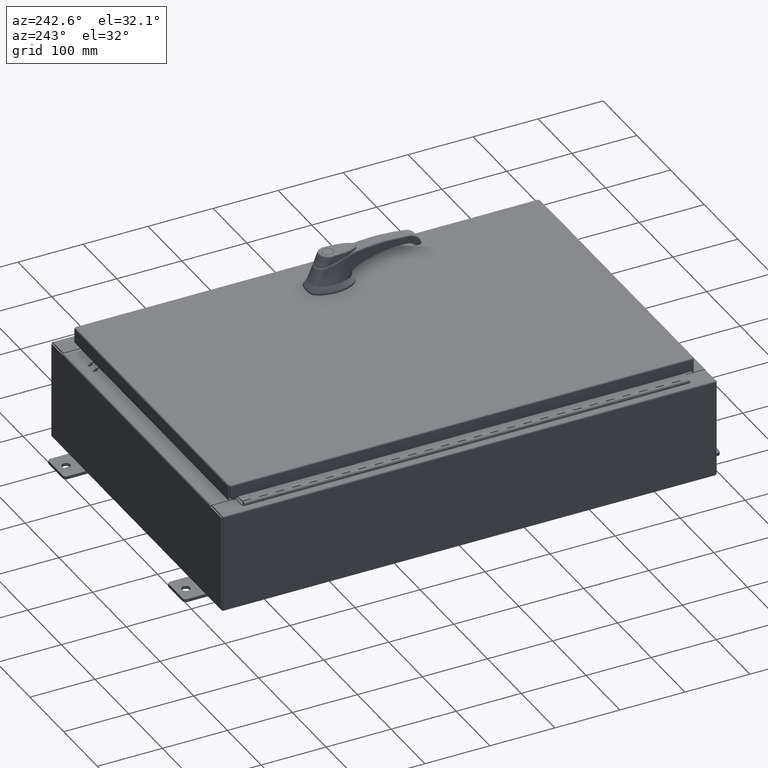
[diagram: clean part render]
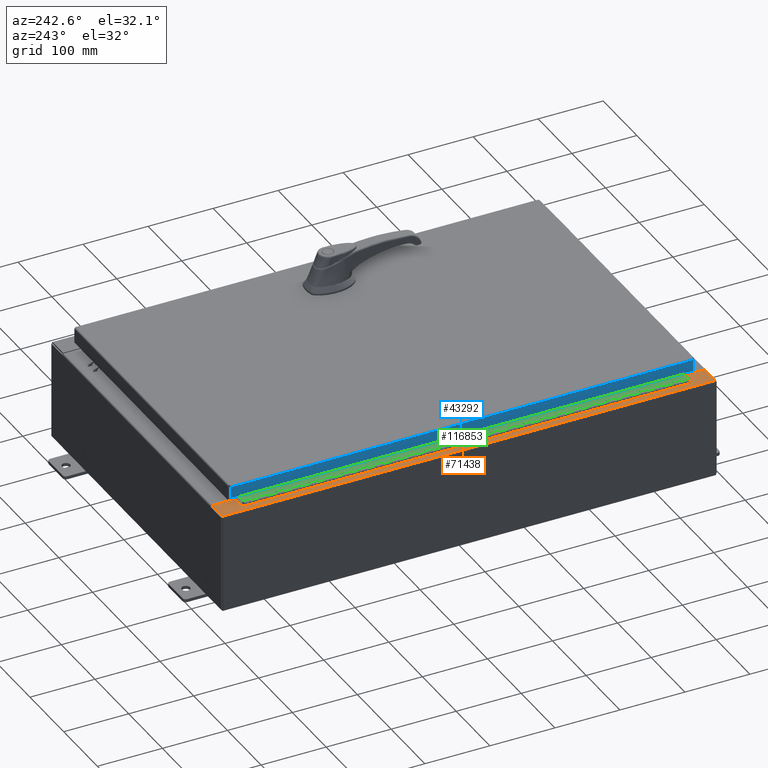
[diagram: same view with three faces highlighted in distinct colors, each labeled with its STEP entity id]
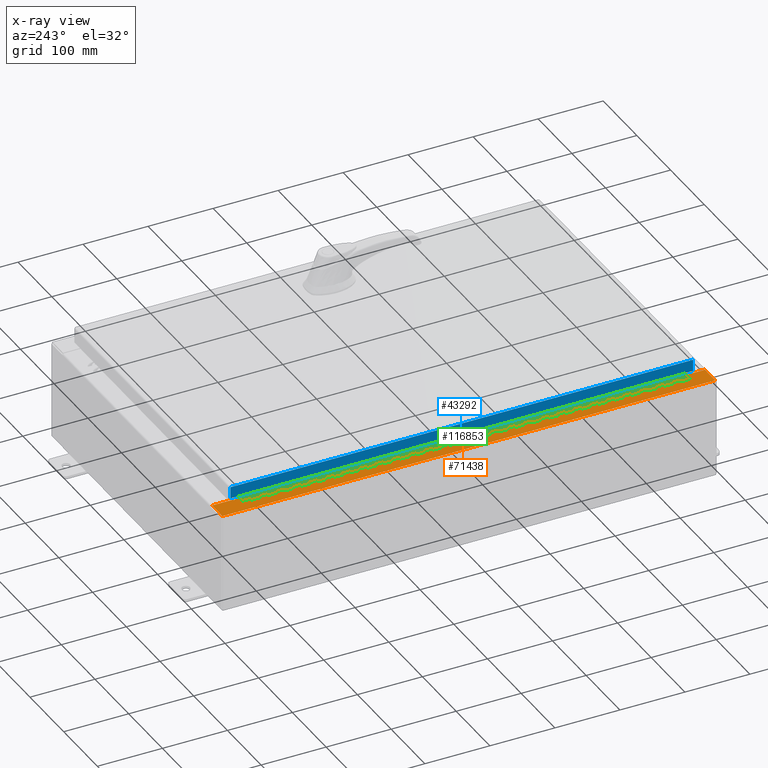
[diagram: x-ray of the same camera — body ghosted, the three highlighted faces saturated]
A machine part, auxiliary view with three faces highlighted in distinct colors.
The next image is the same camera in x-ray (body ghosted, the three faces saturated) — at least one of them is partly hidden behind the body in this view.
Their STEP definitions:

[orange] entity #71438 — the highlighted planar face has unit normal (0, -0, -1).
#2096 = EDGE_CURVE ( 'NONE', #90990, #112214, #65775, .T. ) ;
#2125 = PLANE ( 'NONE',  #61829 ) ;
#2325 = AXIS2_PLACEMENT_3D ( 'NONE', #32313, #96259, #41531 ) ;
#3159 = DIRECTION ( 'NONE',  ( 1.000000000000000000, 0.0000000000000000000, 0.0000000000000000000 ) ) ;
#5094 = VECTOR ( 'NONE', #19086, 39.37007874015748100 ) ;
#5185 = DIRECTION ( 'NONE',  ( 1.000000000000000000, 0.0000000000000000000, 0.0000000000000000000 ) ) ;
#5983 = DIRECTION ( 'NONE',  ( -1.000000000000000000, -4.379057701015054300E-047, -7.132762385546378400E-015 ) ) ;
#6901 = CARTESIAN_POINT ( 'NONE',  ( -9.912300000000017900, -14.92529999999999600, 5.925299999999999100 ) ) ;
#7535 = VERTEX_POINT ( 'NONE', #33943 ) ;
#8051 = EDGE_CURVE ( 'NONE', #88987, #42790, #19163, .T. ) ;
#9307 = LINE ( 'NONE', #47516, #79425 ) ;
#15338 = ORIENTED_EDGE ( 'NONE', *, *, #114132, .F. ) ;
#15406 = DIRECTION ( 'NONE',  ( -0.0000000000000000000, -1.000000000000000000, -0.0000000000000000000 ) ) ;
#17407 = CARTESIAN_POINT ( 'NONE',  ( -8.699700000000019500, 13.63110000000000400, 5.925300000000008000 ) ) ;
#19086 = DIRECTION ( 'NONE',  ( 4.379057701015054300E-047, 1.000000000000000000, -3.660694248911932200E-017 ) ) ;
#19163 = LINE ( 'NONE', #65174, #67843 ) ;
#19241 = FACE_OUTER_BOUND ( 'NONE', #26368, .T. ) ;
#19877 = EDGE_CURVE ( 'NONE', #41123, #76669, #42690, .T. ) ;
#20524 = DIRECTION ( 'NONE',  ( -1.000000000000000000, 0.0000000000000000000, -7.132762385546378400E-015 ) ) ;
#23064 = ORIENTED_EDGE ( 'NONE', *, *, #80922, .T. ) ;
#25722 = EDGE_CURVE ( 'NONE', #76669, #7535, #54554, .T. ) ;
#26368 = EDGE_LOOP ( 'NONE', ( #15338, #66733, #46135, #116914, #23064, #66961, #93068, #89599, #113322, #49699, #93060, #99919 ) ) ;
#26958 = DIRECTION ( 'NONE',  ( -7.321388497823866900E-017, 1.000000000000000000, -3.660694248911984600E-017 ) ) ;
#30182 = VECTOR ( 'NONE', #5185, 39.37007874015748100 ) ;
#30421 = LINE ( 'NONE', #63094, #76215 ) ;
#31445 = VERTEX_POINT ( 'NONE', #6901 ) ;
#32166 = VECTOR ( 'NONE', #15406, 39.37007874015748100 ) ;
#32313 = CARTESIAN_POINT ( 'NONE',  ( -8.750050000000021200, -13.61242499999999500, 5.925300000000008000 ) ) ;
#32732 = EDGE_CURVE ( 'NONE', #63520, #88987, #42216, .T. ) ;
#33690 = CARTESIAN_POINT ( 'NONE',  ( -8.750050000000021200, 13.63110000000000200, 5.925300000000007100 ) ) ;
#33943 = CARTESIAN_POINT ( 'NONE',  ( -8.699700000000019500, -13.63109999999999600, 5.925300000000008000 ) ) ;
#34725 = DIRECTION ( 'NONE',  ( 1.000000000000000000, 4.379057701015054300E-047, 7.132762385546378400E-015 ) ) ;
#40356 = CARTESIAN_POINT ( 'NONE',  ( -9.912300000000017900, 14.92530000000000500, 5.925299999999999100 ) ) ;
#40924 = EDGE_CURVE ( 'NONE', #31445, #112214, #53862, .T. ) ;
#41123 = VERTEX_POINT ( 'NONE', #76143 ) ;
#41531 = DIRECTION ( 'NONE',  ( 1.000000000000000000, 0.0000000000000000000, 0.0000000000000000000 ) ) ;
#42216 = CIRCLE ( 'NONE', #97324, 0.01867499999999949400 ) ;
#42690 = CIRCLE ( 'NONE', #2325, 0.01867499999999949400 ) ;
#42790 = VERTEX_POINT ( 'NONE', #60541 ) ;
#43040 = CARTESIAN_POINT ( 'NONE',  ( -8.712700000000021200, 13.59375000000000400, 5.925300000000008000 ) ) ;
#43911 = CARTESIAN_POINT ( 'NONE',  ( -4.252457061909003200E-014, 14.92530000000000500, 5.925300000000069300 ) ) ;
#44845 = EDGE_CURVE ( 'NONE', #77351, #41123, #30421, .T. ) ;
#46135 = ORIENTED_EDGE ( 'NONE', *, *, #2096, .T. ) ;
#47516 = CARTESIAN_POINT ( 'NONE',  ( -8.699700000000019500, 2.169071163307790200E-016, 5.925300000000008000 ) ) ;
#48132 = LINE ( 'NONE', #80312, #69584 ) ;
#48314 = EDGE_CURVE ( 'NONE', #49979, #7535, #105311, .T. ) ;
#49699 = ORIENTED_EDGE ( 'NONE', *, *, #108120, .F. ) ;
#49979 = VERTEX_POINT ( 'NONE', #60881 ) ;
#50467 = CARTESIAN_POINT ( 'NONE',  ( -8.712700000000021200, -13.59374999999999500, 5.925300000000008000 ) ) ;
#51005 = VECTOR ( 'NONE', #26958, 39.37007874015748100 ) ;
#53732 = VECTOR ( 'NONE', #91065, 39.37007874015748100 ) ;
#53862 = LINE ( 'NONE', #63403, #51005 ) ;
#54554 = LINE ( 'NONE', #87150, #30182 ) ;
#57201 = VECTOR ( 'NONE', #5983, 39.37007874015748100 ) ;
#58022 = DIRECTION ( 'NONE',  ( -7.132762385546378400E-015, 3.660694248911932200E-017, 1.000000000000000000 ) ) ;
#60541 = CARTESIAN_POINT ( 'NONE',  ( -8.712700000000021200, 13.59375000000000200, 5.925300000000008000 ) ) ;
#60881 = CARTESIAN_POINT ( 'NONE',  ( -8.699700000000019500, -14.92529999999999600, 5.925300000000008000 ) ) ;
#61829 = AXIS2_PLACEMENT_3D ( 'NONE', #66169, #75368, #20524 ) ;
#63094 = CARTESIAN_POINT ( 'NONE',  ( -8.712700000000021200, -13.59374999999999500, 5.925300000000008000 ) ) ;
#63403 = CARTESIAN_POINT ( 'NONE',  ( -9.912300000000019700, 14.92530000000000500, 5.925299999999999100 ) ) ;
#63520 = VERTEX_POINT ( 'NONE', #33690 ) ;
#65174 = CARTESIAN_POINT ( 'NONE',  ( -8.750050000000021200, 13.59375000000000200, 5.925300000000008000 ) ) ;
#65775 = LINE ( 'NONE', #43911, #57201 ) ;
#66169 = CARTESIAN_POINT ( 'NONE',  ( -4.252457061909003800E-014, 2.169071163307812900E-016, 5.925300000000070200 ) ) ;
#66733 = ORIENTED_EDGE ( 'NONE', *, *, #114466, .T. ) ;
#66961 = ORIENTED_EDGE ( 'NONE', *, *, #48314, .T. ) ;
#67843 = VECTOR ( 'NONE', #118105, 39.37007874015748100 ) ;
#69584 = VECTOR ( 'NONE', #34725, 39.37007874015748100 ) ;
#71300 = CARTESIAN_POINT ( 'NONE',  ( -8.699700000000019500, 14.92530000000000500, 5.925300000000007100 ) ) ;
#71438 = ADVANCED_FACE ( 'NONE', ( #19241 ), #2125, .F. ) ;
#73540 = CARTESIAN_POINT ( 'NONE',  ( -8.699700000000019500, 2.169071163307790200E-016, 5.925300000000008000 ) ) ;
#75368 = DIRECTION ( 'NONE',  ( 7.132762385546378400E-015, -3.660694248911932200E-017, -1.000000000000000000 ) ) ;
#76143 = CARTESIAN_POINT ( 'NONE',  ( -8.750050000000021200, -13.59374999999999500, 5.925300000000008000 ) ) ;
#76215 = VECTOR ( 'NONE', #108667, 39.37007874015748100 ) ;
#76669 = VERTEX_POINT ( 'NONE', #109485 ) ;
#77351 = VERTEX_POINT ( 'NONE', #50467 ) ;
#79425 = VECTOR ( 'NONE', #102637, 39.37007874015748100 ) ;
#80312 = CARTESIAN_POINT ( 'NONE',  ( -4.252457061909004500E-014, -14.92529999999999600, 5.925300000000070200 ) ) ;
#80922 = EDGE_CURVE ( 'NONE', #31445, #49979, #48132, .T. ) ;
#80933 = LINE ( 'NONE', #81902, #53732 ) ;
#81902 = CARTESIAN_POINT ( 'NONE',  ( -8.699700000000019500, 13.63110000000000400, 5.925300000000008000 ) ) ;
#83671 = LINE ( 'NONE', #43040, #32166 ) ;
#87150 = CARTESIAN_POINT ( 'NONE',  ( -8.750050000000021200, -13.63109999999999500, 5.925300000000008000 ) ) ;
#88667 = VERTEX_POINT ( 'NONE', #17407 ) ;
#88987 = VERTEX_POINT ( 'NONE', #111259 ) ;
#89599 = ORIENTED_EDGE ( 'NONE', *, *, #19877, .F. ) ;
#90990 = VERTEX_POINT ( 'NONE', #71300 ) ;
#91065 = DIRECTION ( 'NONE',  ( -1.000000000000000000, -4.340572780399910900E-014, 0.0000000000000000000 ) ) ;
#93060 = ORIENTED_EDGE ( 'NONE', *, *, #8051, .F. ) ;
#93068 = ORIENTED_EDGE ( 'NONE', *, *, #25722, .F. ) ;
#96259 = DIRECTION ( 'NONE',  ( -7.132762385546378400E-015, 3.660694248911932200E-017, 1.000000000000000000 ) ) ;
#97324 = AXIS2_PLACEMENT_3D ( 'NONE', #112827, #58022, #3159 ) ;
#99919 = ORIENTED_EDGE ( 'NONE', *, *, #32732, .F. ) ;
#102637 = DIRECTION ( 'NONE',  ( 4.379057701015054300E-047, 1.000000000000000000, -3.660694248911932200E-017 ) ) ;
#105311 = LINE ( 'NONE', #73540, #5094 ) ;
#108120 = EDGE_CURVE ( 'NONE', #42790, #77351, #83671, .T. ) ;
#108667 = DIRECTION ( 'NONE',  ( -1.000000000000000000, 0.0000000000000000000, 0.0000000000000000000 ) ) ;
#109485 = CARTESIAN_POINT ( 'NONE',  ( -8.750050000000021200, -13.63109999999999500, 5.925300000000008000 ) ) ;
#111259 = CARTESIAN_POINT ( 'NONE',  ( -8.750050000000021200, 13.59375000000000200, 5.925300000000008000 ) ) ;
#112214 = VERTEX_POINT ( 'NONE', #40356 ) ;
#112827 = CARTESIAN_POINT ( 'NONE',  ( -8.750050000000021200, 13.61242500000000200, 5.925300000000008000 ) ) ;
#113322 = ORIENTED_EDGE ( 'NONE', *, *, #44845, .F. ) ;
#114132 = EDGE_CURVE ( 'NONE', #88667, #63520, #80933, .T. ) ;
#114466 = EDGE_CURVE ( 'NONE', #88667, #90990, #9307, .T. ) ;
#116914 = ORIENTED_EDGE ( 'NONE', *, *, #40924, .F. ) ;
#118105 = DIRECTION ( 'NONE',  ( 1.000000000000000000, 0.0000000000000000000, 0.0000000000000000000 ) ) ;

[blue] entity #43292 — the highlighted planar face has unit normal (1, 0, -0).
#10839 = DIRECTION ( 'NONE',  ( 1.000000000000000000, 3.675660434206576600E-031, -3.034122441942816500E-015 ) ) ;
#15271 = VECTOR ( 'NONE', #93817, 39.37007874015748100 ) ;
#18944 = EDGE_CURVE ( 'NONE', #62788, #89581, #42805, .T. ) ;
#25255 = CARTESIAN_POINT ( 'NONE',  ( -9.077999999999997600, -14.09399999999999600, -0.08770000000000004200 ) ) ;
#29719 = AXIS2_PLACEMENT_3D ( 'NONE', #38020, #10839, #74813 ) ;
#30153 = ORIENTED_EDGE ( 'NONE', *, *, #109830, .F. ) ;
#30621 = EDGE_CURVE ( 'NONE', #89581, #82488, #35275, .T. ) ;
#31277 = ORIENTED_EDGE ( 'NONE', *, *, #40358, .T. ) ;
#35275 = LINE ( 'NONE', #88210, #102486 ) ;
#38020 = CARTESIAN_POINT ( 'NONE',  ( -9.077999999999997600, -3.336764542172729700E-030, 2.780457718396846400E-014 ) ) ;
#38348 = ORIENTED_EDGE ( 'NONE', *, *, #30621, .F. ) ;
#39866 = VECTOR ( 'NONE', #72525, 39.37007874015748100 ) ;
#40358 = EDGE_CURVE ( 'NONE', #117627, #82488, #85338, .T. ) ;
#42705 = DIRECTION ( 'NONE',  ( -4.379057701015054300E-047, 1.000000000000000000, 1.211441035930299800E-016 ) ) ;
#42805 = LINE ( 'NONE', #63364, #39866 ) ;
#42846 = VECTOR ( 'NONE', #80073, 39.37007874015748100 ) ;
#43292 = ADVANCED_FACE ( 'NONE', ( #49270 ), #110860, .F. ) ;
#49270 = FACE_OUTER_BOUND ( 'NONE', #109599, .T. ) ;
#60754 = CARTESIAN_POINT ( 'NONE',  ( -9.077999999999999400, 14.00515786437627400, -0.7949999999999962700 ) ) ;
#62788 = VERTEX_POINT ( 'NONE', #100544 ) ;
#63364 = CARTESIAN_POINT ( 'NONE',  ( -9.077999999999997600, -14.00515786437626500, -0.07469999999999976700 ) ) ;
#65867 = CARTESIAN_POINT ( 'NONE',  ( -9.077999999999997600, 14.00515786437626900, 1.256020718460122500E-013 ) ) ;
#72525 = DIRECTION ( 'NONE',  ( -3.034122441942816500E-015, 6.982962677686265900E-015, -1.000000000000000000 ) ) ;
#74813 = DIRECTION ( 'NONE',  ( -3.034122441942816500E-015, 0.0000000000000000000, -1.000000000000000000 ) ) ;
#80073 = DIRECTION ( 'NONE',  ( 3.675660434206577100E-031, -1.000000000000000000, -1.083515668565077200E-045 ) ) ;
#82488 = VERTEX_POINT ( 'NONE', #60754 ) ;
#85003 = CARTESIAN_POINT ( 'NONE',  ( -9.077999999999999400, -14.00515786437626200, -0.7949999999999996000 ) ) ;
#85338 = LINE ( 'NONE', #65867, #15271 ) ;
#88210 = CARTESIAN_POINT ( 'NONE',  ( -9.077999999999999400, -14.09399999999999600, -0.7949999999999997100 ) ) ;
#89581 = VERTEX_POINT ( 'NONE', #85003 ) ;
#93041 = CARTESIAN_POINT ( 'NONE',  ( -9.077999999999997600, 14.00515786437626900, -0.08770000000000004200 ) ) ;
#93817 = DIRECTION ( 'NONE',  ( -3.034122441942816500E-015, 6.982962677686265900E-015, -1.000000000000000000 ) ) ;
#100544 = CARTESIAN_POINT ( 'NONE',  ( -9.077999999999997600, -14.00515786437626400, -0.08770000000000007000 ) ) ;
#102486 = VECTOR ( 'NONE', #42705, 39.37007874015748100 ) ;
#109599 = EDGE_LOOP ( 'NONE', ( #30153, #31277, #38348, #109797 ) ) ;
#109797 = ORIENTED_EDGE ( 'NONE', *, *, #18944, .F. ) ;
#109830 = EDGE_CURVE ( 'NONE', #117627, #62788, #110092, .T. ) ;
#110092 = LINE ( 'NONE', #25255, #42846 ) ;
#110860 = PLANE ( 'NONE',  #29719 ) ;
#117627 = VERTEX_POINT ( 'NONE', #93041 ) ;

[green] entity #116853 — the highlighted planar face has unit normal (-0, -0, 1).
#99 = DIRECTION ( 'NONE',  ( 0.0000000000000000000, 0.0000000000000000000, 1.000000000000000000 ) ) ;
#101 = VERTEX_POINT ( 'NONE', #49085 ) ;
#515 = VECTOR ( 'NONE', #33947, 39.37007874015748100 ) ;
#531 = LINE ( 'NONE', #85552, #46411 ) ;
#694 = VECTOR ( 'NONE', #118014, 39.37007874015748100 ) ;
#731 = DIRECTION ( 'NONE',  ( 0.0000000000000000000, 0.0000000000000000000, 1.000000000000000000 ) ) ;
#915 = VERTEX_POINT ( 'NONE', #58572 ) ;
#988 = EDGE_CURVE ( 'NONE', #33244, #53142, #87312, .T. ) ;
#1331 = VECTOR ( 'NONE', #17713, 39.37007874015748100 ) ;
#1424 = CARTESIAN_POINT ( 'NONE',  ( -0.6869999999999973900, 0.8004999999999995500, -11.00000000000000000 ) ) ;
#1430 = ORIENTED_EDGE ( 'NONE', *, *, #5968, .F. ) ;
#1492 = VECTOR ( 'NONE', #31775, 39.37007874015748100 ) ;
#1755 = CARTESIAN_POINT ( 'NONE',  ( -0.6869999999999978300, 0.6754999999999996600, -21.00000000000000000 ) ) ;
#1828 = CARTESIAN_POINT ( 'NONE',  ( -0.6869999999999982800, 0.5504999999999997700, -19.50000000000000000 ) ) ;
#1919 = DIRECTION ( 'NONE',  ( 0.0000000000000000000, 0.0000000000000000000, 1.000000000000000000 ) ) ;
#2011 = EDGE_CURVE ( 'NONE', #23357, #102638, #17108, .T. ) ;
#2018 = CARTESIAN_POINT ( 'NONE',  ( -0.6869999999999982800, 0.5504999999999997700, -7.499999999999999100 ) ) ;
#2398 = CARTESIAN_POINT ( 'NONE',  ( -0.6869999999999973900, 0.8004999999999995500, -23.50000000000000000 ) ) ;
#2402 = CARTESIAN_POINT ( 'NONE',  ( -0.6869999999999982800, 0.5504999999999997700, -10.50000000000000000 ) ) ;
#2606 = LINE ( 'NONE', #37638, #51359 ) ;
#2649 = EDGE_CURVE ( 'NONE', #26571, #53142, #98611, .T. ) ;
#2674 = ORIENTED_EDGE ( 'NONE', *, *, #90441, .F. ) ;
#2867 = EDGE_CURVE ( 'NONE', #74529, #62286, #65685, .T. ) ;
#2919 = CARTESIAN_POINT ( 'NONE',  ( -0.6869999999999973900, 0.8004999999999995500, -12.99999999999999800 ) ) ;
#3309 = VECTOR ( 'NONE', #77573, 39.37007874015748100 ) ;
#3474 = ORIENTED_EDGE ( 'NONE', *, *, #77734, .F. ) ;
#3739 = VERTEX_POINT ( 'NONE', #48495 ) ;
#3764 = CARTESIAN_POINT ( 'NONE',  ( -0.6869999999999978300, 0.6754999999999996600, -11.50000000000000000 ) ) ;
#3772 = EDGE_CURVE ( 'NONE', #49450, #92438, #92705, .T. ) ;
#4404 = DIRECTION ( 'NONE',  ( 0.0000000000000000000, -0.0000000000000000000, -1.000000000000000000 ) ) ;
#4761 = ORIENTED_EDGE ( 'NONE', *, *, #88314, .F. ) ;
#4764 = DIRECTION ( 'NONE',  ( 0.0000000000000000000, 0.0000000000000000000, 1.000000000000000000 ) ) ;
#4804 = DIRECTION ( 'NONE',  ( 0.0000000000000000000, 0.0000000000000000000, 1.000000000000000000 ) ) ;
#4872 = CARTESIAN_POINT ( 'NONE',  ( -0.6869999999999973900, 0.8004999999999995500, -16.50000000000000000 ) ) ;
#4936 = VECTOR ( 'NONE', #106101, 39.37007874015748100 ) ;
#5001 = DIRECTION ( 'NONE',  ( 3.369016658928398200E-015, 1.000000000000000000, 0.0000000000000000000 ) ) ;
#5005 = LINE ( 'NONE', #90006, #17874 ) ;
#5034 = CARTESIAN_POINT ( 'NONE',  ( -0.6869999999999978300, 0.6754999999999996600, -20.50000000000000400 ) ) ;
#5195 = CARTESIAN_POINT ( 'NONE',  ( -0.6869999999999978300, 0.6754999999999996600, -27.00000000000000000 ) ) ;
#5325 = DIRECTION ( 'NONE',  ( 0.0000000000000000000, -0.0000000000000000000, -1.000000000000000000 ) ) ;
#5371 = LINE ( 'NONE', #108784, #96954 ) ;
#5467 = VERTEX_POINT ( 'NONE', #112048 ) ;
#5503 = DIRECTION ( 'NONE',  ( 0.0000000000000000000, -0.0000000000000000000, -1.000000000000000000 ) ) ;
#5906 = CARTESIAN_POINT ( 'NONE',  ( -0.6869999999999982800, 0.5504999999999997700, -1.000000000000000000 ) ) ;
#5921 = ORIENTED_EDGE ( 'NONE', *, *, #79672, .F. ) ;
#5968 = EDGE_CURVE ( 'NONE', #18396, #20206, #93855, .T. ) ;
#6254 = CARTESIAN_POINT ( 'NONE',  ( -0.6870000000000022800, -0.6245000000000003900, -27.00000000000000000 ) ) ;
#6269 = ORIENTED_EDGE ( 'NONE', *, *, #118557, .F. ) ;
#6331 = ORIENTED_EDGE ( 'NONE', *, *, #8559, .F. ) ;
#6375 = VECTOR ( 'NONE', #88538, 39.37007874015748100 ) ;
#6634 = DIRECTION ( 'NONE',  ( 3.389037039080723100E-015, 1.000000000000000000, -0.0000000000000000000 ) ) ;
#6906 = VERTEX_POINT ( 'NONE', #56035 ) ;
#6944 = EDGE_CURVE ( 'NONE', #82371, #116694, #109554, .T. ) ;
#6981 = EDGE_CURVE ( 'NONE', #93449, #70121, #106675, .T. ) ;
#7206 = VERTEX_POINT ( 'NONE', #82545 ) ;
#7252 = DIRECTION ( 'NONE',  ( 3.389037039080723100E-015, 1.000000000000000000, -0.0000000000000000000 ) ) ;
#7391 = LINE ( 'NONE', #60179, #34584 ) ;
#7537 = VERTEX_POINT ( 'NONE', #46050 ) ;
#7606 = CARTESIAN_POINT ( 'NONE',  ( -0.6869999999999978300, 0.6754999999999996600, -17.99999999999999600 ) ) ;
#7765 = LINE ( 'NONE', #100134, #53547 ) ;
#7838 = CARTESIAN_POINT ( 'NONE',  ( -0.6869999999999978300, 0.6754999999999996600, -9.500000000000000000 ) ) ;
#7928 = CARTESIAN_POINT ( 'NONE',  ( -0.6869999999999978300, 0.6754999999999996600, -27.00000000000000000 ) ) ;
#7954 = LINE ( 'NONE', #32613, #29395 ) ;
#8077 = LINE ( 'NONE', #91915, #102479 ) ;
#8193 = LINE ( 'NONE', #115677, #54002 ) ;
#8360 = VECTOR ( 'NONE', #47021, 39.37007874015748100 ) ;
#8463 = DIRECTION ( 'NONE',  ( -3.389037039080723100E-015, -1.000000000000000000, 0.0000000000000000000 ) ) ;
#8507 = EDGE_CURVE ( 'NONE', #107497, #98609, #14839, .T. ) ;
#8559 = EDGE_CURVE ( 'NONE', #33245, #16449, #79232, .T. ) ;
#8649 = CARTESIAN_POINT ( 'NONE',  ( -0.6869999999999978300, 0.6754999999999996600, -27.00000000000000000 ) ) ;
#8970 = VECTOR ( 'NONE', #25457, 39.37007874015748100 ) ;
#9038 = DIRECTION ( 'NONE',  ( 0.0000000000000000000, 0.0000000000000000000, 1.000000000000000000 ) ) ;
#9096 = VERTEX_POINT ( 'NONE', #107725 ) ;
#9116 = VECTOR ( 'NONE', #88095, 39.37007874015748100 ) ;
#9364 = ORIENTED_EDGE ( 'NONE', *, *, #63690, .F. ) ;
#9508 = VECTOR ( 'NONE', #56713, 39.37007874015748100 ) ;
#9660 = VECTOR ( 'NONE', #84179, 39.37007874015748100 ) ;
#9741 = VECTOR ( 'NONE', #58581, 39.37007874015748100 ) ;
#9782 = DIRECTION ( 'NONE',  ( 3.389037039080723100E-015, 1.000000000000000000, -0.0000000000000000000 ) ) ;
#10094 = ORIENTED_EDGE ( 'NONE', *, *, #100155, .F. ) ;
#10160 = DIRECTION ( 'NONE',  ( -3.389037039080723100E-015, -1.000000000000000000, 0.0000000000000000000 ) ) ;
#10214 = LINE ( 'NONE', #32627, #37397 ) ;
#10261 = CARTESIAN_POINT ( 'NONE',  ( -0.6869999999999978300, 0.6754999999999996600, -1.000000000000000000 ) ) ;
#10396 = EDGE_CURVE ( 'NONE', #73797, #75952, #51029, .T. ) ;
#10417 = DIRECTION ( 'NONE',  ( 3.389037039080723100E-015, 1.000000000000000000, -0.0000000000000000000 ) ) ;
#10681 = EDGE_CURVE ( 'NONE', #83835, #63262, #103896, .T. ) ;
#11037 = CARTESIAN_POINT ( 'NONE',  ( -0.6869999999999982800, 0.5504999999999997700, -13.50000000000000000 ) ) ;
#11110 = LINE ( 'NONE', #64578, #81248 ) ;
#11280 = EDGE_CURVE ( 'NONE', #23357, #104047, #53785, .T. ) ;
#11304 = ORIENTED_EDGE ( 'NONE', *, *, #22999, .F. ) ;
#11458 = VECTOR ( 'NONE', #99, 39.37007874015748100 ) ;
#11616 = DIRECTION ( 'NONE',  ( 3.389037039080723100E-015, 1.000000000000000000, -0.0000000000000000000 ) ) ;
#11664 = ORIENTED_EDGE ( 'NONE', *, *, #45511, .F. ) ;
#11785 = ORIENTED_EDGE ( 'NONE', *, *, #44632, .F. ) ;
#11852 = EDGE_CURVE ( 'NONE', #73082, #16607, #25044, .T. ) ;
#11865 = CARTESIAN_POINT ( 'NONE',  ( -0.6869999999999982800, 0.5504999999999997700, -6.499999999999999100 ) ) ;
#11943 = VECTOR ( 'NONE', #71591, 39.37007874015748100 ) ;
#11988 = ORIENTED_EDGE ( 'NONE', *, *, #94096, .F. ) ;
#12062 = VECTOR ( 'NONE', #118600, 39.37007874015748100 ) ;
#12242 = CARTESIAN_POINT ( 'NONE',  ( -0.6869999999999978300, 0.6754999999999996600, -23.50000000000000000 ) ) ;
#12522 = CARTESIAN_POINT ( 'NONE',  ( -0.6869999999999973900, 0.8004999999999995500, -12.49999999999999800 ) ) ;
#13013 = EDGE_CURVE ( 'NONE', #80050, #75310, #40672, .T. ) ;
#13188 = EDGE_CURVE ( 'NONE', #13719, #107521, #7765, .T. ) ;
#13217 = VECTOR ( 'NONE', #34687, 39.37007874015748100 ) ;
#13464 = CARTESIAN_POINT ( 'NONE',  ( -0.6869999999999982800, 0.5504999999999997700, -25.50000000000000400 ) ) ;
#13617 = EDGE_CURVE ( 'NONE', #70755, #96324, #97814, .T. ) ;
#13702 = DIRECTION ( 'NONE',  ( 0.0000000000000000000, 0.0000000000000000000, 1.000000000000000000 ) ) ;
#13719 = VERTEX_POINT ( 'NONE', #47493 ) ;
#14101 = LINE ( 'NONE', #26542, #62820 ) ;
#14205 = LINE ( 'NONE', #92504, #111561 ) ;
#14232 = VECTOR ( 'NONE', #9038, 39.37007874015748100 ) ;
#14445 = EDGE_CURVE ( 'NONE', #111163, #84017, #57664, .T. ) ;
#14839 = LINE ( 'NONE', #25936, #11943 ) ;
#15198 = ORIENTED_EDGE ( 'NONE', *, *, #87218, .F. ) ;
#15434 = DIRECTION ( 'NONE',  ( 3.369016658928398200E-015, 1.000000000000000000, 0.0000000000000000000 ) ) ;
#15446 = CARTESIAN_POINT ( 'NONE',  ( -0.6869999999999978300, 0.6754999999999996600, -19.50000000000000000 ) ) ;
#15506 = EDGE_CURVE ( 'NONE', #68494, #96263, #67506, .T. ) ;
#15537 = VERTEX_POINT ( 'NONE', #110461 ) ;
#15572 = DIRECTION ( 'NONE',  ( 0.0000000000000000000, 0.0000000000000000000, 1.000000000000000000 ) ) ;
#15865 = CARTESIAN_POINT ( 'NONE',  ( -0.6869999999999982800, 0.5504999999999997700, -23.00000000000000000 ) ) ;
#15926 = CARTESIAN_POINT ( 'NONE',  ( -0.6869999999999973900, 0.8004999999999995500, -10.00000000000000000 ) ) ;
#16039 = LINE ( 'NONE', #74334, #61875 ) ;
#16173 = CARTESIAN_POINT ( 'NONE',  ( -0.6869999999999982800, 0.5504999999999997700, -21.50000000000000400 ) ) ;
#16195 = CARTESIAN_POINT ( 'NONE',  ( -0.6869999999999982800, 0.5504999999999997700, -9.000000000000000000 ) ) ;
#16268 = ORIENTED_EDGE ( 'NONE', *, *, #2011, .T. ) ;
#16346 = VECTOR ( 'NONE', #114201, 39.37007874015748100 ) ;
#16449 = VERTEX_POINT ( 'NONE', #103771 ) ;
#16510 = DIRECTION ( 'NONE',  ( -3.389037039080723100E-015, -1.000000000000000000, 0.0000000000000000000 ) ) ;
#16574 = EDGE_CURVE ( 'NONE', #58430, #87583, #25847, .T. ) ;
#16607 = VERTEX_POINT ( 'NONE', #32583 ) ;
#16625 = DIRECTION ( 'NONE',  ( -3.389037039080723100E-015, -1.000000000000000000, 0.0000000000000000000 ) ) ;
#16841 = ORIENTED_EDGE ( 'NONE', *, *, #104318, .F. ) ;
#16930 = DIRECTION ( 'NONE',  ( 0.0000000000000000000, -0.0000000000000000000, -1.000000000000000000 ) ) ;
#17108 = LINE ( 'NONE', #8649, #14232 ) ;
#17233 = DIRECTION ( 'NONE',  ( -3.389037039080723100E-015, -1.000000000000000000, 0.0000000000000000000 ) ) ;
#17321 = DIRECTION ( 'NONE',  ( 0.0000000000000000000, -0.0000000000000000000, -1.000000000000000000 ) ) ;
#17559 = VECTOR ( 'NONE', #33509, 39.37007874015748100 ) ;
#17713 = DIRECTION ( 'NONE',  ( 3.389037039080723100E-015, 1.000000000000000000, -0.0000000000000000000 ) ) ;
#17874 = VECTOR ( 'NONE', #71260, 39.37007874015748100 ) ;
#17937 = LINE ( 'NONE', #117630, #39396 ) ;
#18178 = DIRECTION ( 'NONE',  ( 0.0000000000000000000, -0.0000000000000000000, -1.000000000000000000 ) ) ;
#18396 = VERTEX_POINT ( 'NONE', #113087 ) ;
#18423 = CARTESIAN_POINT ( 'NONE',  ( -0.6869999999999978300, 0.6754999999999996600, -11.00000000000000000 ) ) ;
#18666 = VERTEX_POINT ( 'NONE', #35053 ) ;
#19112 = DIRECTION ( 'NONE',  ( 0.0000000000000000000, 0.0000000000000000000, 1.000000000000000000 ) ) ;
#19140 = CARTESIAN_POINT ( 'NONE',  ( -0.6869999999999982800, 0.5504999999999997700, -23.50000000000000000 ) ) ;
#19220 = LINE ( 'NONE', #7928, #46504 ) ;
#19319 = CARTESIAN_POINT ( 'NONE',  ( -0.6869999999999982800, 0.5504999999999997700, -24.50000000000000000 ) ) ;
#19370 = CARTESIAN_POINT ( 'NONE',  ( -0.6869999999999978300, 0.6754999999999996600, -12.49999999999999800 ) ) ;
#19493 = ORIENTED_EDGE ( 'NONE', *, *, #103087, .F. ) ;
#19620 = VERTEX_POINT ( 'NONE', #101526 ) ;
#19875 = DIRECTION ( 'NONE',  ( 0.0000000000000000000, 0.0000000000000000000, 1.000000000000000000 ) ) ;
#20022 = VECTOR ( 'NONE', #52640, 39.37007874015748100 ) ;
#20206 = VERTEX_POINT ( 'NONE', #72754 ) ;
#20222 = CARTESIAN_POINT ( 'NONE',  ( -0.6869999999999982800, 0.5504999999999997700, -12.49999999999999800 ) ) ;
#20329 = ORIENTED_EDGE ( 'NONE', *, *, #46384, .F. ) ;
#20335 = EDGE_CURVE ( 'NONE', #66685, #68350, #49767, .T. ) ;
#20453 = CARTESIAN_POINT ( 'NONE',  ( -0.6869999999999982800, 0.5504999999999997700, -4.500000000000000000 ) ) ;
#21629 = LINE ( 'NONE', #108630, #91757 ) ;
#21720 = ORIENTED_EDGE ( 'NONE', *, *, #3772, .F. ) ;
#21722 = LINE ( 'NONE', #83884, #83268 ) ;
#22172 = DIRECTION ( 'NONE',  ( 0.0000000000000000000, -0.0000000000000000000, -1.000000000000000000 ) ) ;
#22400 = DIRECTION ( 'NONE',  ( 0.0000000000000000000, 0.0000000000000000000, 1.000000000000000000 ) ) ;
#22403 = DIRECTION ( 'NONE',  ( 3.389037039080723100E-015, 1.000000000000000000, -0.0000000000000000000 ) ) ;
#22561 = VECTOR ( 'NONE', #11616, 39.37007874015748100 ) ;
#22713 = CARTESIAN_POINT ( 'NONE',  ( -0.6869999999999982800, 0.5504999999999997700, -15.50000000000000000 ) ) ;
#22999 = EDGE_CURVE ( 'NONE', #87592, #81263, #62589, .T. ) ;
#23030 = LINE ( 'NONE', #62581, #71734 ) ;
#23086 = VERTEX_POINT ( 'NONE', #100916 ) ;
#23185 = ORIENTED_EDGE ( 'NONE', *, *, #95860, .T. ) ;
#23186 = CARTESIAN_POINT ( 'NONE',  ( -0.6869999999999973900, 0.8004999999999995500, -13.50000000000000000 ) ) ;
#23357 = VERTEX_POINT ( 'NONE', #87206 ) ;
#23468 = VECTOR ( 'NONE', #18178, 39.37007874015748100 ) ;
#23753 = VECTOR ( 'NONE', #22403, 39.37007874015748100 ) ;
#23856 = ORIENTED_EDGE ( 'NONE', *, *, #58667, .F. ) ;
#23910 = EDGE_CURVE ( 'NONE', #54575, #117776, #21629, .T. ) ;
#23921 = LINE ( 'NONE', #98435, #118413 ) ;
#23960 = CARTESIAN_POINT ( 'NONE',  ( -0.6869999999999978300, 0.6754999999999996600, -18.50000000000000000 ) ) ;
#24024 = ORIENTED_EDGE ( 'NONE', *, *, #107733, .F. ) ;
#24078 = LINE ( 'NONE', #20453, #94193 ) ;
#24305 = CARTESIAN_POINT ( 'NONE',  ( -0.6869999999999978300, 0.6754999999999996600, -27.00000000000000000 ) ) ;
#24557 = CARTESIAN_POINT ( 'NONE',  ( -0.6869999999999982800, 0.5504999999999997700, -20.50000000000000400 ) ) ;
#24923 = VECTOR ( 'NONE', #35167, 39.37007874015748100 ) ;
#25044 = LINE ( 'NONE', #117228, #694 ) ;
#25383 = EDGE_CURVE ( 'NONE', #99853, #65064, #7391, .T. ) ;
#25457 = DIRECTION ( 'NONE',  ( 0.0000000000000000000, 0.0000000000000000000, 1.000000000000000000 ) ) ;
#25502 = ORIENTED_EDGE ( 'NONE', *, *, #100265, .F. ) ;
#25605 = VECTOR ( 'NONE', #64152, 39.37007874015748100 ) ;
#25629 = EDGE_CURVE ( 'NONE', #116694, #103189, #111826, .T. ) ;
#25847 = LINE ( 'NONE', #58986, #1492 ) ;
#25884 = ORIENTED_EDGE ( 'NONE', *, *, #88894, .F. ) ;
#25936 = CARTESIAN_POINT ( 'NONE',  ( -0.6869999999999973900, 0.8004999999999995500, -22.00000000000000000 ) ) ;
#26210 = VECTOR ( 'NONE', #96944, 39.37007874015748100 ) ;
#26482 = DIRECTION ( 'NONE',  ( 0.0000000000000000000, -0.0000000000000000000, -1.000000000000000000 ) ) ;
#26525 = LINE ( 'NONE', #2919, #53775 ) ;
#26526 = LINE ( 'NONE', #113626, #105294 ) ;
#26542 = CARTESIAN_POINT ( 'NONE',  ( -0.6869999999999982800, 0.5504999999999997700, -10.50000000000000000 ) ) ;
#26571 = VERTEX_POINT ( 'NONE', #50130 ) ;
#26647 = VECTOR ( 'NONE', #59673, 39.37007874015748100 ) ;
#27022 = ORIENTED_EDGE ( 'NONE', *, *, #51157, .F. ) ;
#27319 = DIRECTION ( 'NONE',  ( 3.389037039080723100E-015, 1.000000000000000000, -0.0000000000000000000 ) ) ;
#27638 = LINE ( 'NONE', #33846, #52019 ) ;
#28226 = ORIENTED_EDGE ( 'NONE', *, *, #30055, .F. ) ;
#28426 = LINE ( 'NONE', #68788, #89918 ) ;
#28432 = CARTESIAN_POINT ( 'NONE',  ( -0.6869999999999978300, 0.6754999999999996600, -22.00000000000000000 ) ) ;
#28447 = LINE ( 'NONE', #112211, #98592 ) ;
#28489 = CARTESIAN_POINT ( 'NONE',  ( -0.6869999999999973900, 0.8004999999999995500, -8.500000000000000000 ) ) ;
#28794 = CARTESIAN_POINT ( 'NONE',  ( -0.6869999999999982800, 0.5504999999999997700, -17.99999999999999600 ) ) ;
#28978 = VERTEX_POINT ( 'NONE', #52261 ) ;
#29090 = ORIENTED_EDGE ( 'NONE', *, *, #68270, .F. ) ;
#29110 = DIRECTION ( 'NONE',  ( 3.389037039080723100E-015, 1.000000000000000000, -0.0000000000000000000 ) ) ;
#29132 = EDGE_CURVE ( 'NONE', #65832, #109727, #112749, .T. ) ;
#29274 = LINE ( 'NONE', #77708, #4936 ) ;
#29395 = VECTOR ( 'NONE', #68200, 39.37007874015748100 ) ;
#29556 = CARTESIAN_POINT ( 'NONE',  ( -0.6869999999999982800, 0.5504999999999997700, -11.00000000000000000 ) ) ;
#29857 = EDGE_CURVE ( 'NONE', #66996, #28978, #75434, .T. ) ;
#30005 = EDGE_CURVE ( 'NONE', #35737, #111163, #66811, .T. ) ;
#30055 = EDGE_CURVE ( 'NONE', #84017, #95735, #39615, .T. ) ;
#30193 = CARTESIAN_POINT ( 'NONE',  ( -0.6869999999999998300, 0.07549999999999991400, -27.00000000000000000 ) ) ;
#30372 = ORIENTED_EDGE ( 'NONE', *, *, #111528, .F. ) ;
#31142 = ORIENTED_EDGE ( 'NONE', *, *, #6944, .F. ) ;
#31693 = CARTESIAN_POINT ( 'NONE',  ( -0.6869999999999978300, 0.6754999999999996600, -6.000000000000000900 ) ) ;
#31775 = DIRECTION ( 'NONE',  ( -3.389037039080723100E-015, -1.000000000000000000, 0.0000000000000000000 ) ) ;
#31779 = EDGE_CURVE ( 'NONE', #107771, #109018, #26526, .T. ) ;
#31825 = EDGE_CURVE ( 'NONE', #23086, #5467, #118140, .T. ) ;
#32042 = LINE ( 'NONE', #62272, #86376 ) ;
#32225 = EDGE_CURVE ( 'NONE', #68494, #70615, #70852, .T. ) ;
#32583 = CARTESIAN_POINT ( 'NONE',  ( -0.6869999999999982800, 0.5504999999999997700, -4.000000000000000000 ) ) ;
#32613 = CARTESIAN_POINT ( 'NONE',  ( -0.6869999999999973900, 0.8004999999999995500, -4.000000000000000000 ) ) ;
#32627 = CARTESIAN_POINT ( 'NONE',  ( -0.6870000000000022800, -0.6245000000000003900, -27.00000000000000000 ) ) ;
#32638 = DIRECTION ( 'NONE',  ( 0.0000000000000000000, 0.0000000000000000000, 1.000000000000000000 ) ) ;
#32989 = CARTESIAN_POINT ( 'NONE',  ( -0.6869999999999973900, 0.8004999999999995500, -23.00000000000000000 ) ) ;
#33042 = EDGE_CURVE ( 'NONE', #62286, #48831, #73616, .T. ) ;
#33244 = VERTEX_POINT ( 'NONE', #103045 ) ;
#33245 = VERTEX_POINT ( 'NONE', #48302 ) ;
#33509 = DIRECTION ( 'NONE',  ( -3.389037039080723100E-015, -1.000000000000000000, 0.0000000000000000000 ) ) ;
#33576 = CARTESIAN_POINT ( 'NONE',  ( -0.6869999999999978300, 0.6754999999999996600, -27.00000000000000000 ) ) ;
#33846 = CARTESIAN_POINT ( 'NONE',  ( -0.6869999999999973900, 0.8004999999999995500, -17.50000000000000000 ) ) ;
#33947 = DIRECTION ( 'NONE',  ( 0.0000000000000000000, 0.0000000000000000000, 1.000000000000000000 ) ) ;
#33999 = VECTOR ( 'NONE', #45576, 39.37007874015748100 ) ;
#34214 = CARTESIAN_POINT ( 'NONE',  ( -0.6869999999999982800, 0.5504999999999997700, -17.50000000000000000 ) ) ;
#34247 = VECTOR ( 'NONE', #17321, 39.37007874015748100 ) ;
#34285 = EDGE_CURVE ( 'NONE', #74290, #55595, #104940, .T. ) ;
#34319 = ORIENTED_EDGE ( 'NONE', *, *, #93003, .F. ) ;
#34584 = VECTOR ( 'NONE', #5325, 39.37007874015748100 ) ;
#34608 = EDGE_LOOP ( 'NONE', ( #42489, #49893, #85674, #109238, #61174, #64032, #79227, #31142, #80960, #25884, #118115, #77073, #42237, #16841, #20329, #84069, #66411, #27022, #107486, #6269, #82111, #62271, #51512, #9364, #50998, #56316, #102423, #115518, #86067, #106089, #113865, #11664, #93021, #23856, #75898, #38440, #56838, #3474, #96926, #57894, #73125, #10094, #93768, #87310, #16268, #19493, #111305, #30372, #23185, #102239, #84681, #79849, #52787, #94654, #50681, #59597, #47865, #99985, #68379, #68874, #97013, #89029, #34319, #101521, #37593, #24024, #15198, #21720, #51053, #29090, #11988, #25502, #43340, #49241, #4761, #6331, #94236, #28226, #117764, #112453, #87388, #1430, #41145, #56720, #78496, #86548, #44041, #69727, #72727, #90528, #79173, #103783, #52331, #43976, #74666, #66457, #41184, #78461, #5921, #11785, #87629, #91287, #51172, #56967, #62645, #11304, #77956, #2674, #104502, #87574 ) ) ;
#34639 = CARTESIAN_POINT ( 'NONE',  ( -0.6869999999999982800, 0.5504999999999997700, -11.50000000000000000 ) ) ;
#34687 = DIRECTION ( 'NONE',  ( 0.0000000000000000000, -0.0000000000000000000, -1.000000000000000000 ) ) ;
#34820 = VERTEX_POINT ( 'NONE', #15446 ) ;
#34905 = VECTOR ( 'NONE', #15572, 39.37007874015748100 ) ;
#35001 = VERTEX_POINT ( 'NONE', #92143 ) ;
#35053 = CARTESIAN_POINT ( 'NONE',  ( -0.6869999999999982800, 0.5504999999999997700, -2.000000000000000000 ) ) ;
#35167 = DIRECTION ( 'NONE',  ( 0.0000000000000000000, -0.0000000000000000000, -1.000000000000000000 ) ) ;
#35224 = VECTOR ( 'NONE', #32638, 39.37007874015748100 ) ;
#35283 = CARTESIAN_POINT ( 'NONE',  ( -0.6869999999999982800, 0.5504999999999997700, -6.499999999999999100 ) ) ;
#35355 = VERTEX_POINT ( 'NONE', #71307 ) ;
#35737 = VERTEX_POINT ( 'NONE', #112823 ) ;
#35795 = LINE ( 'NONE', #36510, #11458 ) ;
#35974 = CARTESIAN_POINT ( 'NONE',  ( -0.6869999999999973900, 0.8004999999999995500, -5.000000000000000000 ) ) ;
#36375 = CARTESIAN_POINT ( 'NONE',  ( -0.6869999999999973900, 0.8004999999999995500, -17.99999999999999600 ) ) ;
#36510 = CARTESIAN_POINT ( 'NONE',  ( -0.6869999999999978300, 0.6754999999999996600, -27.00000000000000000 ) ) ;
#36587 = CARTESIAN_POINT ( 'NONE',  ( -0.6869999999999982800, 0.5504999999999997700, -11.50000000000000000 ) ) ;
#36784 = VERTEX_POINT ( 'NONE', #16173 ) ;
#36814 = LINE ( 'NONE', #64353, #33999 ) ;
#36925 = LINE ( 'NONE', #84542, #9741 ) ;
#37077 = EDGE_CURVE ( 'NONE', #34820, #58605, #65758, .T. ) ;
#37189 = DIRECTION ( 'NONE',  ( 3.389037039080723100E-015, 1.000000000000000000, -0.0000000000000000000 ) ) ;
#37349 = CARTESIAN_POINT ( 'NONE',  ( -0.6869999999999978300, 0.6754999999999996600, -2.000000000000000000 ) ) ;
#37397 = VECTOR ( 'NONE', #5001, 39.37007874015748100 ) ;
#37433 = EDGE_CURVE ( 'NONE', #44212, #6906, #72890, .T. ) ;
#37479 = LINE ( 'NONE', #74711, #58973 ) ;
#37593 = ORIENTED_EDGE ( 'NONE', *, *, #72322, .T. ) ;
#37638 = CARTESIAN_POINT ( 'NONE',  ( -0.6869999999999973900, 0.8004999999999995500, -24.99999999999999600 ) ) ;
#37667 = CARTESIAN_POINT ( 'NONE',  ( -0.6869999999999982800, 0.5504999999999997700, -27.00000000000000000 ) ) ;
#38073 = LINE ( 'NONE', #59851, #35224 ) ;
#38440 = ORIENTED_EDGE ( 'NONE', *, *, #37433, .F. ) ;
#38554 = CARTESIAN_POINT ( 'NONE',  ( -0.6869999999999973900, 0.8004999999999995500, -3.500000000000000000 ) ) ;
#38657 = LINE ( 'NONE', #97078, #111704 ) ;
#38876 = CARTESIAN_POINT ( 'NONE',  ( -0.6869999999999982800, 0.5504999999999997700, -0.5000000000000000000 ) ) ;
#39235 = CARTESIAN_POINT ( 'NONE',  ( -0.6869999999999978300, 0.6754999999999996600, -27.00000000000000000 ) ) ;
#39294 = EDGE_CURVE ( 'NONE', #89574, #18396, #118451, .T. ) ;
#39396 = VECTOR ( 'NONE', #72032, 39.37007874015748100 ) ;
#39615 = LINE ( 'NONE', #82339, #64000 ) ;
#39731 = VERTEX_POINT ( 'NONE', #40373 ) ;
#39764 = CARTESIAN_POINT ( 'NONE',  ( -0.6869999999999978300, 0.6754999999999996600, -27.00000000000000000 ) ) ;
#40001 = CARTESIAN_POINT ( 'NONE',  ( -0.6869999999999982800, 0.5504999999999997700, -26.00000000000000000 ) ) ;
#40088 = CARTESIAN_POINT ( 'NONE',  ( -0.6869999999999978300, 0.6754999999999996600, -12.99999999999999800 ) ) ;
#40373 = CARTESIAN_POINT ( 'NONE',  ( -0.6869999999999978300, 0.6754999999999996600, -23.00000000000000000 ) ) ;
#40636 = VECTOR ( 'NONE', #41215, 39.37007874015748100 ) ;
#40672 = LINE ( 'NONE', #110463, #16346 ) ;
#40789 = VERTEX_POINT ( 'NONE', #98591 ) ;
#41145 = ORIENTED_EDGE ( 'NONE', *, *, #39294, .F. ) ;
#41184 = ORIENTED_EDGE ( 'NONE', *, *, #63965, .T. ) ;
#41215 = DIRECTION ( 'NONE',  ( 0.0000000000000000000, 0.0000000000000000000, 1.000000000000000000 ) ) ;
#41276 = DIRECTION ( 'NONE',  ( -3.389037039080723100E-015, -1.000000000000000000, 0.0000000000000000000 ) ) ;
#41456 = VECTOR ( 'NONE', #74124, 39.37007874015748100 ) ;
#41479 = LINE ( 'NONE', #107492, #111609 ) ;
#41551 = CARTESIAN_POINT ( 'NONE',  ( -0.6869999999999978300, 0.6754999999999996600, -25.50000000000000400 ) ) ;
#41593 = VECTOR ( 'NONE', #82596, 39.37007874015748100 ) ;
#41645 = EDGE_CURVE ( 'NONE', #33245, #95735, #95233, .T. ) ;
#41954 = LINE ( 'NONE', #42744, #17559 ) ;
#42180 = CARTESIAN_POINT ( 'NONE',  ( -0.6869999999999978300, 0.6754999999999996600, -5.000000000000000000 ) ) ;
#42237 = ORIENTED_EDGE ( 'NONE', *, *, #75106, .T. ) ;
#42489 = ORIENTED_EDGE ( 'NONE', *, *, #76287, .F. ) ;
#42498 = VERTEX_POINT ( 'NONE', #7838 ) ;
#42744 = CARTESIAN_POINT ( 'NONE',  ( -0.6869999999999973900, 0.8004999999999995500, -2.500000000000000000 ) ) ;
#42764 = EDGE_CURVE ( 'NONE', #66685, #80050, #29274, .T. ) ;
#43340 = ORIENTED_EDGE ( 'NONE', *, *, #72250, .T. ) ;
#43976 = ORIENTED_EDGE ( 'NONE', *, *, #81583, .F. ) ;
#44041 = ORIENTED_EDGE ( 'NONE', *, *, #45813, .F. ) ;
#44150 = VECTOR ( 'NONE', #95211, 39.37007874015748100 ) ;
#44212 = VERTEX_POINT ( 'NONE', #23960 ) ;
#44439 = CARTESIAN_POINT ( 'NONE',  ( -0.6869999999999982800, 0.5504999999999997700, -23.99999999999999600 ) ) ;
#44527 = DIRECTION ( 'NONE',  ( 0.0000000000000000000, -0.0000000000000000000, -1.000000000000000000 ) ) ;
#44632 = EDGE_CURVE ( 'NONE', #76788, #7537, #41954, .T. ) ;
#44769 = DIRECTION ( 'NONE',  ( -3.389037039080723100E-015, -1.000000000000000000, 0.0000000000000000000 ) ) ;
#44807 = EDGE_CURVE ( 'NONE', #7206, #63262, #79102, .T. ) ;
#44831 = CARTESIAN_POINT ( 'NONE',  ( -0.6869999999999978300, 0.6754999999999996600, -27.00000000000000000 ) ) ;
#44982 = CARTESIAN_POINT ( 'NONE',  ( -0.6870000000000022800, -0.6245000000000003900, 0.0000000000000000000 ) ) ;
#45141 = EDGE_CURVE ( 'NONE', #19620, #73082, #107686, .T. ) ;
#45474 = LINE ( 'NONE', #86856, #88317 ) ;
#45511 = EDGE_CURVE ( 'NONE', #34820, #9096, #110727, .T. ) ;
#45576 = DIRECTION ( 'NONE',  ( 0.0000000000000000000, 0.0000000000000000000, 1.000000000000000000 ) ) ;
#45617 = DIRECTION ( 'NONE',  ( 3.389037039080723100E-015, 1.000000000000000000, -0.0000000000000000000 ) ) ;
#45813 = EDGE_CURVE ( 'NONE', #87583, #83835, #114937, .T. ) ;
#45836 = CARTESIAN_POINT ( 'NONE',  ( -0.6869999999999982800, 0.5504999999999997700, -22.50000000000000000 ) ) ;
#46050 = CARTESIAN_POINT ( 'NONE',  ( -0.6869999999999982800, 0.5504999999999997700, -2.500000000000000000 ) ) ;
#46384 = EDGE_CURVE ( 'NONE', #75952, #80631, #61945, .T. ) ;
#46411 = VECTOR ( 'NONE', #58406, 39.37007874015748100 ) ;
#46504 = VECTOR ( 'NONE', #62756, 39.37007874015748100 ) ;
#46842 = VECTOR ( 'NONE', #1919, 39.37007874015748100 ) ;
#46882 = LINE ( 'NONE', #76973, #52614 ) ;
#47021 = DIRECTION ( 'NONE',  ( 0.0000000000000000000, 0.0000000000000000000, 1.000000000000000000 ) ) ;
#47181 = DIRECTION ( 'NONE',  ( -3.389037039080723100E-015, -1.000000000000000000, 0.0000000000000000000 ) ) ;
#47189 = CARTESIAN_POINT ( 'NONE',  ( -0.6869999999999982800, 0.5504999999999997700, -1.499999999999999800 ) ) ;
#47203 = LINE ( 'NONE', #54541, #98692 ) ;
#47493 = CARTESIAN_POINT ( 'NONE',  ( -0.6869999999999978300, 0.6754999999999996600, -24.50000000000000000 ) ) ;
#47502 = DIRECTION ( 'NONE',  ( 3.389037039080723100E-015, 1.000000000000000000, -0.0000000000000000000 ) ) ;
#47547 = LINE ( 'NONE', #15926, #71843 ) ;
#47719 = VECTOR ( 'NONE', #4404, 39.37007874015748100 ) ;
#47820 = DIRECTION ( 'NONE',  ( -3.389037039080723100E-015, -1.000000000000000000, 0.0000000000000000000 ) ) ;
#47855 = VECTOR ( 'NONE', #5503, 39.37007874015748100 ) ;
#47865 = ORIENTED_EDGE ( 'NONE', *, *, #98877, .T. ) ;
#48302 = CARTESIAN_POINT ( 'NONE',  ( -0.6869999999999978300, 0.6754999999999996600, -8.500000000000000000 ) ) ;
#48495 = CARTESIAN_POINT ( 'NONE',  ( -0.6869999999999982800, 0.5504999999999997700, -14.00000000000000000 ) ) ;
#48557 = VECTOR ( 'NONE', #41276, 39.37007874015748100 ) ;
#48831 = VERTEX_POINT ( 'NONE', #91720 ) ;
#49085 = CARTESIAN_POINT ( 'NONE',  ( -0.6869999999999982800, 0.5504999999999997700, -17.00000000000000000 ) ) ;
#49241 = ORIENTED_EDGE ( 'NONE', *, *, #29132, .F. ) ;
#49246 = CARTESIAN_POINT ( 'NONE',  ( -0.6869999999999978300, 0.6754999999999996600, -8.000000000000000000 ) ) ;
#49450 = VERTEX_POINT ( 'NONE', #67361 ) ;
#49568 = EDGE_CURVE ( 'NONE', #82209, #33244, #55068, .T. ) ;
#49767 = LINE ( 'NONE', #55589, #68340 ) ;
#49893 = ORIENTED_EDGE ( 'NONE', *, *, #68962, .T. ) ;
#50130 = CARTESIAN_POINT ( 'NONE',  ( -0.6869999999999978300, 0.6754999999999996600, -21.50000000000000400 ) ) ;
#50159 = VECTOR ( 'NONE', #6634, 39.37007874015748100 ) ;
#50260 = EDGE_CURVE ( 'NONE', #104047, #101, #72134, .T. ) ;
#50681 = ORIENTED_EDGE ( 'NONE', *, *, #79480, .F. ) ;
#50728 = LINE ( 'NONE', #19319, #23468 ) ;
#50998 = ORIENTED_EDGE ( 'NONE', *, *, #2649, .T. ) ;
#51029 = LINE ( 'NONE', #2398, #26647 ) ;
#51053 = ORIENTED_EDGE ( 'NONE', *, *, #53938, .T. ) ;
#51145 = CARTESIAN_POINT ( 'NONE',  ( -0.6869999999999982800, 0.5504999999999997700, -16.50000000000000000 ) ) ;
#51157 = EDGE_CURVE ( 'NONE', #86419, #39731, #99229, .T. ) ;
#51159 = CARTESIAN_POINT ( 'NONE',  ( -0.6869999999999982800, 0.5504999999999997700, -6.000000000000000900 ) ) ;
#51172 = ORIENTED_EDGE ( 'NONE', *, *, #87706, .F. ) ;
#51235 = CARTESIAN_POINT ( 'NONE',  ( -0.6869999999999982800, 0.5504999999999997700, -7.499999999999999100 ) ) ;
#51359 = VECTOR ( 'NONE', #101604, 39.37007874015748100 ) ;
#51512 = ORIENTED_EDGE ( 'NONE', *, *, #72118, .F. ) ;
#51710 = DIRECTION ( 'NONE',  ( -3.389037039080723100E-015, -1.000000000000000000, 0.0000000000000000000 ) ) ;
#51980 = DIRECTION ( 'NONE',  ( 0.0000000000000000000, 0.0000000000000000000, 1.000000000000000000 ) ) ;
#52019 = VECTOR ( 'NONE', #88578, 39.37007874015748100 ) ;
#52194 = EDGE_CURVE ( 'NONE', #74529, #70121, #116462, .T. ) ;
#52261 = CARTESIAN_POINT ( 'NONE',  ( -0.6869999999999978300, 0.6754999999999996600, -20.00000000000000000 ) ) ;
#52331 = ORIENTED_EDGE ( 'NONE', *, *, #15506, .T. ) ;
#52614 = VECTOR ( 'NONE', #22172, 39.37007874015748100 ) ;
#52640 = DIRECTION ( 'NONE',  ( -3.389037039080723100E-015, -1.000000000000000000, 0.0000000000000000000 ) ) ;
#52787 = ORIENTED_EDGE ( 'NONE', *, *, #31779, .T. ) ;
#53142 = VERTEX_POINT ( 'NONE', #1755 ) ;
#53147 = CARTESIAN_POINT ( 'NONE',  ( -0.6869999999999982800, 0.5504999999999997700, -24.50000000000000000 ) ) ;
#53152 = LINE ( 'NONE', #76418, #98924 ) ;
#53444 = CARTESIAN_POINT ( 'NONE',  ( -0.6869999999999973900, 0.8004999999999995500, -9.000000000000000000 ) ) ;
#53547 = VECTOR ( 'NONE', #110703, 39.37007874015748100 ) ;
#53775 = VECTOR ( 'NONE', #66956, 39.37007874015748100 ) ;
#53785 = LINE ( 'NONE', #4872, #96666 ) ;
#53910 = EDGE_CURVE ( 'NONE', #18666, #117088, #16039, .T. ) ;
#53928 = EDGE_CURVE ( 'NONE', #115308, #113555, #37479, .T. ) ;
#53938 = EDGE_CURVE ( 'NONE', #49450, #88456, #21722, .T. ) ;
#53969 = LINE ( 'NONE', #83591, #102580 ) ;
#54002 = VECTOR ( 'NONE', #51710, 39.37007874015748100 ) ;
#54541 = CARTESIAN_POINT ( 'NONE',  ( -0.6869999999999973900, 0.8004999999999995500, -20.50000000000000400 ) ) ;
#54575 = VERTEX_POINT ( 'NONE', #73171 ) ;
#54897 = CARTESIAN_POINT ( 'NONE',  ( -0.6869999999999978300, 0.6754999999999996600, -27.00000000000000000 ) ) ;
#54929 = LINE ( 'NONE', #68369, #3309 ) ;
#55068 = LINE ( 'NONE', #24557, #6375 ) ;
#55340 = CARTESIAN_POINT ( 'NONE',  ( -0.6869999999999978300, 0.6754999999999996600, -10.00000000000000000 ) ) ;
#55549 = AXIS2_PLACEMENT_3D ( 'NONE', #6254, #70250, #15434 ) ;
#55589 = CARTESIAN_POINT ( 'NONE',  ( -0.6869999999999978300, 0.6754999999999996600, -27.00000000000000000 ) ) ;
#55595 = VERTEX_POINT ( 'NONE', #56061 ) ;
#56035 = CARTESIAN_POINT ( 'NONE',  ( -0.6869999999999982800, 0.5504999999999997700, -18.50000000000000000 ) ) ;
#56061 = CARTESIAN_POINT ( 'NONE',  ( -0.6869999999999978300, 0.6754999999999996600, -17.00000000000000000 ) ) ;
#56168 = LINE ( 'NONE', #93792, #101902 ) ;
#56316 = ORIENTED_EDGE ( 'NONE', *, *, #988, .F. ) ;
#56367 = DIRECTION ( 'NONE',  ( 3.389037039080723100E-015, 1.000000000000000000, -0.0000000000000000000 ) ) ;
#56422 = CARTESIAN_POINT ( 'NONE',  ( -0.6869999999999978300, 0.6754999999999996600, -27.00000000000000000 ) ) ;
#56713 = DIRECTION ( 'NONE',  ( 0.0000000000000000000, -0.0000000000000000000, -1.000000000000000000 ) ) ;
#56720 = ORIENTED_EDGE ( 'NONE', *, *, #99272, .F. ) ;
#56838 = ORIENTED_EDGE ( 'NONE', *, *, #57587, .T. ) ;
#56850 = CARTESIAN_POINT ( 'NONE',  ( -0.6869999999999978300, 0.6754999999999996600, -27.00000000000000000 ) ) ;
#56967 = ORIENTED_EDGE ( 'NONE', *, *, #116983, .F. ) ;
#57418 = DIRECTION ( 'NONE',  ( 0.0000000000000000000, -0.0000000000000000000, -1.000000000000000000 ) ) ;
#57587 = EDGE_CURVE ( 'NONE', #44212, #97505, #28426, .T. ) ;
#57664 = LINE ( 'NONE', #51235, #81985 ) ;
#57894 = ORIENTED_EDGE ( 'NONE', *, *, #72934, .F. ) ;
#58160 = LINE ( 'NONE', #1828, #9508 ) ;
#58322 = LINE ( 'NONE', #11037, #9660 ) ;
#58406 = DIRECTION ( 'NONE',  ( 0.0000000000000000000, -0.0000000000000000000, -1.000000000000000000 ) ) ;
#58430 = VERTEX_POINT ( 'NONE', #98615 ) ;
#58572 = CARTESIAN_POINT ( 'NONE',  ( -0.6869999999999978300, 0.6754999999999996600, -1.499999999999999800 ) ) ;
#58581 = DIRECTION ( 'NONE',  ( 0.0000000000000000000, -0.0000000000000000000, -1.000000000000000000 ) ) ;
#58605 = VERTEX_POINT ( 'NONE', #72576 ) ;
#58667 = EDGE_CURVE ( 'NONE', #40789, #58605, #11110, .T. ) ;
#58899 = EDGE_CURVE ( 'NONE', #58430, #71615, #45474, .T. ) ;
#58973 = VECTOR ( 'NONE', #29110, 39.37007874015748100 ) ;
#58986 = CARTESIAN_POINT ( 'NONE',  ( -0.6869999999999973900, 0.8004999999999995500, -5.500000000000000000 ) ) ;
#59028 = VECTOR ( 'NONE', #47820, 39.37007874015748100 ) ;
#59090 = CARTESIAN_POINT ( 'NONE',  ( -0.6869999999999998300, 0.07549999999999991400, 0.0000000000000000000 ) ) ;
#59270 = CARTESIAN_POINT ( 'NONE',  ( -0.6869999999999982800, 0.5504999999999997700, -5.500000000000000000 ) ) ;
#59597 = ORIENTED_EDGE ( 'NONE', *, *, #31825, .F. ) ;
#59615 = CARTESIAN_POINT ( 'NONE',  ( -0.6869999999999982800, 0.5504999999999997700, -24.99999999999999600 ) ) ;
#59642 = VECTOR ( 'NONE', #94034, 39.37007874015748100 ) ;
#59673 = DIRECTION ( 'NONE',  ( -3.389037039080723100E-015, -1.000000000000000000, 0.0000000000000000000 ) ) ;
#59851 = CARTESIAN_POINT ( 'NONE',  ( -0.6869999999999978300, 0.6754999999999996600, -27.00000000000000000 ) ) ;
#59993 = VERTEX_POINT ( 'NONE', #45836 ) ;
#60087 = EDGE_CURVE ( 'NONE', #915, #81263, #105682, .T. ) ;
#60179 = CARTESIAN_POINT ( 'NONE',  ( -0.6869999999999982800, 0.5504999999999997700, -17.50000000000000000 ) ) ;
#60182 = CARTESIAN_POINT ( 'NONE',  ( -0.6869999999999982800, 0.5504999999999997700, -2.999999999999999600 ) ) ;
#60663 = LINE ( 'NONE', #106514, #106425 ) ;
#60693 = PLANE ( 'NONE',  #55549 ) ;
#61139 = CARTESIAN_POINT ( 'NONE',  ( -0.6869999999999978300, 0.6754999999999996600, -24.99999999999999600 ) ) ;
#61174 = ORIENTED_EDGE ( 'NONE', *, *, #20335, .T. ) ;
#61204 = EDGE_CURVE ( 'NONE', #103189, #68350, #23921, .T. ) ;
#61457 = CARTESIAN_POINT ( 'NONE',  ( -0.6869999999999973900, 0.8004999999999995500, -17.00000000000000000 ) ) ;
#61552 = CARTESIAN_POINT ( 'NONE',  ( -0.6869999999999982800, 0.5504999999999997700, -8.000000000000000000 ) ) ;
#61617 = EDGE_CURVE ( 'NONE', #35737, #20206, #76850, .T. ) ;
#61788 = VECTOR ( 'NONE', #67417, 39.37007874015748100 ) ;
#61825 = VERTEX_POINT ( 'NONE', #77512 ) ;
#61875 = VECTOR ( 'NONE', #56367, 39.37007874015748100 ) ;
#61945 = LINE ( 'NONE', #89440, #13217 ) ;
#62077 = VECTOR ( 'NONE', #16510, 39.37007874015748100 ) ;
#62218 = EDGE_CURVE ( 'NONE', #9096, #94611, #58160, .T. ) ;
#62271 = ORIENTED_EDGE ( 'NONE', *, *, #8507, .F. ) ;
#62272 = CARTESIAN_POINT ( 'NONE',  ( -0.6869999999999973900, 0.8004999999999995500, -1.499999999999999800 ) ) ;
#62286 = VERTEX_POINT ( 'NONE', #20222 ) ;
#62397 = VECTOR ( 'NONE', #100451, 39.37007874015748100 ) ;
#62511 = EDGE_CURVE ( 'NONE', #82371, #76366, #38073, .T. ) ;
#62581 = CARTESIAN_POINT ( 'NONE',  ( -0.6869999999999978300, 0.6754999999999996600, -27.00000000000000000 ) ) ;
#62589 = LINE ( 'NONE', #100522, #106206 ) ;
#62645 = ORIENTED_EDGE ( 'NONE', *, *, #60087, .T. ) ;
#62756 = DIRECTION ( 'NONE',  ( 0.0000000000000000000, 0.0000000000000000000, 1.000000000000000000 ) ) ;
#62820 = VECTOR ( 'NONE', #90503, 39.37007874015748100 ) ;
#62976 = CARTESIAN_POINT ( 'NONE',  ( -0.6869999999999982800, 0.5504999999999997700, -26.50000000000000400 ) ) ;
#63262 = VERTEX_POINT ( 'NONE', #31693 ) ;
#63336 = VERTEX_POINT ( 'NONE', #40088 ) ;
#63445 = DIRECTION ( 'NONE',  ( 0.0000000000000000000, -0.0000000000000000000, -1.000000000000000000 ) ) ;
#63690 = EDGE_CURVE ( 'NONE', #26571, #36784, #5005, .T. ) ;
#63965 = EDGE_CURVE ( 'NONE', #19620, #113555, #19220, .T. ) ;
#63986 = DIRECTION ( 'NONE',  ( 3.389037039080723100E-015, 1.000000000000000000, -0.0000000000000000000 ) ) ;
#64000 = VECTOR ( 'NONE', #63986, 39.37007874015748100 ) ;
#64032 = ORIENTED_EDGE ( 'NONE', *, *, #61204, .F. ) ;
#64152 = DIRECTION ( 'NONE',  ( 3.369016658928398200E-015, 1.000000000000000000, 0.0000000000000000000 ) ) ;
#64321 = LINE ( 'NONE', #35974, #110120 ) ;
#64353 = CARTESIAN_POINT ( 'NONE',  ( -0.6869999999999978300, 0.6754999999999996600, -27.00000000000000000 ) ) ;
#64431 = EDGE_CURVE ( 'NONE', #107521, #117570, #50728, .T. ) ;
#64578 = CARTESIAN_POINT ( 'NONE',  ( -0.6869999999999973900, 0.8004999999999995500, -19.00000000000000000 ) ) ;
#64930 = CARTESIAN_POINT ( 'NONE',  ( -0.6869999999999978300, 0.6754999999999996600, -27.00000000000000000 ) ) ;
#64988 = FACE_OUTER_BOUND ( 'NONE', #34608, .T. ) ;
#65064 = VERTEX_POINT ( 'NONE', #28794 ) ;
#65238 = CARTESIAN_POINT ( 'NONE',  ( -0.6869999999999973900, 0.8004999999999995500, -11.99999999999999800 ) ) ;
#65329 = VERTEX_POINT ( 'NONE', #105164 ) ;
#65685 = LINE ( 'NONE', #12522, #114330 ) ;
#65758 = LINE ( 'NONE', #64930, #41456 ) ;
#65832 = VERTEX_POINT ( 'NONE', #16195 ) ;
#65918 = CARTESIAN_POINT ( 'NONE',  ( -0.6869999999999973900, 0.8004999999999995500, -7.000000000000000000 ) ) ;
#66229 = CARTESIAN_POINT ( 'NONE',  ( -0.6869999999999978300, 0.6754999999999996600, -14.00000000000000000 ) ) ;
#66316 = CARTESIAN_POINT ( 'NONE',  ( -0.6869999999999982800, 0.5504999999999997700, -20.00000000000000000 ) ) ;
#66411 = ORIENTED_EDGE ( 'NONE', *, *, #85531, .T. ) ;
#66457 = ORIENTED_EDGE ( 'NONE', *, *, #45141, .F. ) ;
#66685 = VERTEX_POINT ( 'NONE', #80764 ) ;
#66811 = LINE ( 'NONE', #90266, #69713 ) ;
#66917 = VECTOR ( 'NONE', #117802, 39.37007874015748100 ) ;
#66928 = CARTESIAN_POINT ( 'NONE',  ( -0.6869999999999978300, 0.6754999999999996600, -2.999999999999999600 ) ) ;
#66950 = CARTESIAN_POINT ( 'NONE',  ( -0.6869999999999978300, 0.6754999999999996600, -16.00000000000000000 ) ) ;
#66956 = DIRECTION ( 'NONE',  ( 3.389037039080723100E-015, 1.000000000000000000, -0.0000000000000000000 ) ) ;
#66996 = VERTEX_POINT ( 'NONE', #5034 ) ;
#67361 = CARTESIAN_POINT ( 'NONE',  ( -0.6869999999999978300, 0.6754999999999996600, -10.50000000000000000 ) ) ;
#67417 = DIRECTION ( 'NONE',  ( 0.0000000000000000000, -0.0000000000000000000, -1.000000000000000000 ) ) ;
#67506 = LINE ( 'NONE', #56850, #91809 ) ;
#67676 = DIRECTION ( 'NONE',  ( -3.389037039080723100E-015, -1.000000000000000000, 0.0000000000000000000 ) ) ;
#68200 = DIRECTION ( 'NONE',  ( 3.389037039080723100E-015, 1.000000000000000000, -0.0000000000000000000 ) ) ;
#68270 = EDGE_CURVE ( 'NONE', #15537, #88456, #47547, .T. ) ;
#68340 = VECTOR ( 'NONE', #19112, 39.37007874015748100 ) ;
#68350 = VERTEX_POINT ( 'NONE', #98714 ) ;
#68369 = CARTESIAN_POINT ( 'NONE',  ( -0.6869999999999982800, 0.5504999999999997700, -9.500000000000000000 ) ) ;
#68379 = ORIENTED_EDGE ( 'NONE', *, *, #33042, .F. ) ;
#68494 = VERTEX_POINT ( 'NONE', #81507 ) ;
#68788 = CARTESIAN_POINT ( 'NONE',  ( -0.6869999999999978300, 0.6754999999999996600, -27.00000000000000000 ) ) ;
#68814 = EDGE_CURVE ( 'NONE', #80753, #104484, #86008, .T. ) ;
#68874 = ORIENTED_EDGE ( 'NONE', *, *, #2867, .F. ) ;
#68962 = EDGE_CURVE ( 'NONE', #79563, #75310, #10214, .T. ) ;
#69259 = CARTESIAN_POINT ( 'NONE',  ( -0.6869999999999973900, 0.8004999999999995500, -10.50000000000000000 ) ) ;
#69336 = CARTESIAN_POINT ( 'NONE',  ( -0.6869999999999982800, 0.5504999999999997700, -11.99999999999999800 ) ) ;
#69713 = VECTOR ( 'NONE', #44769, 39.37007874015748100 ) ;
#69727 = ORIENTED_EDGE ( 'NONE', *, *, #16574, .F. ) ;
#70121 = VERTEX_POINT ( 'NONE', #86683 ) ;
#70250 = DIRECTION ( 'NONE',  ( 1.000000000000000000, -3.369016658928398200E-015, 0.0000000000000000000 ) ) ;
#70378 = CARTESIAN_POINT ( 'NONE',  ( -0.6869999999999978300, 0.6754999999999996600, -27.00000000000000000 ) ) ;
#70615 = VERTEX_POINT ( 'NONE', #111841 ) ;
#70755 = VERTEX_POINT ( 'NONE', #3764 ) ;
#70852 = LINE ( 'NONE', #83522, #116649 ) ;
#70880 = CARTESIAN_POINT ( 'NONE',  ( -0.6869999999999982800, 0.5504999999999997700, -16.50000000000000000 ) ) ;
#71260 = DIRECTION ( 'NONE',  ( -3.389037039080723100E-015, -1.000000000000000000, 0.0000000000000000000 ) ) ;
#71280 = LINE ( 'NONE', #75231, #22561 ) ;
#71307 = CARTESIAN_POINT ( 'NONE',  ( -0.6869999999999982800, 0.5504999999999997700, -9.500000000000000000 ) ) ;
#71464 = CARTESIAN_POINT ( 'NONE',  ( -0.6869999999999973900, 0.8004999999999995500, -21.00000000000000000 ) ) ;
#71591 = DIRECTION ( 'NONE',  ( 3.389037039080723100E-015, 1.000000000000000000, -0.0000000000000000000 ) ) ;
#71615 = VERTEX_POINT ( 'NONE', #42180 ) ;
#71734 = VECTOR ( 'NONE', #117315, 39.37007874015748100 ) ;
#71843 = VECTOR ( 'NONE', #79937, 39.37007874015748100 ) ;
#72032 = DIRECTION ( 'NONE',  ( 3.389037039080723100E-015, 1.000000000000000000, -0.0000000000000000000 ) ) ;
#72051 = DIRECTION ( 'NONE',  ( 3.389037039080723100E-015, 1.000000000000000000, -0.0000000000000000000 ) ) ;
#72118 = EDGE_CURVE ( 'NONE', #36784, #107497, #531, .T. ) ;
#72127 = CARTESIAN_POINT ( 'NONE',  ( -0.6869999999999982800, 0.5504999999999997700, -8.500000000000000000 ) ) ;
#72134 = LINE ( 'NONE', #51145, #47855 ) ;
#72250 = EDGE_CURVE ( 'NONE', #42498, #109727, #89253, .T. ) ;
#72284 = CARTESIAN_POINT ( 'NONE',  ( -0.6869999999999973900, 0.8004999999999995500, -25.50000000000000400 ) ) ;
#72322 = EDGE_CURVE ( 'NONE', #70755, #110063, #105012, .T. ) ;
#72517 = CARTESIAN_POINT ( 'NONE',  ( -0.6869999999999973900, 0.8004999999999995500, -14.99999999999999800 ) ) ;
#72557 = VECTOR ( 'NONE', #51980, 39.37007874015748100 ) ;
#72576 = CARTESIAN_POINT ( 'NONE',  ( -0.6869999999999978300, 0.6754999999999996600, -19.00000000000000000 ) ) ;
#72727 = ORIENTED_EDGE ( 'NONE', *, *, #58899, .T. ) ;
#72754 = CARTESIAN_POINT ( 'NONE',  ( -0.6869999999999978300, 0.6754999999999996600, -7.000000000000000000 ) ) ;
#72890 = LINE ( 'NONE', #96014, #48557 ) ;
#72934 = EDGE_CURVE ( 'NONE', #74290, #99853, #27638, .T. ) ;
#73082 = VERTEX_POINT ( 'NONE', #112809 ) ;
#73125 = ORIENTED_EDGE ( 'NONE', *, *, #34285, .T. ) ;
#73171 = CARTESIAN_POINT ( 'NONE',  ( -0.6869999999999982800, 0.5504999999999997700, -14.49999999999999800 ) ) ;
#73209 = LINE ( 'NONE', #39764, #103240 ) ;
#73506 = VECTOR ( 'NONE', #82533, 39.37007874015748100 ) ;
#73616 = LINE ( 'NONE', #100732, #24923 ) ;
#73797 = VERTEX_POINT ( 'NONE', #12242 ) ;
#74124 = DIRECTION ( 'NONE',  ( 0.0000000000000000000, 0.0000000000000000000, 1.000000000000000000 ) ) ;
#74290 = VERTEX_POINT ( 'NONE', #113503 ) ;
#74334 = CARTESIAN_POINT ( 'NONE',  ( -0.6869999999999973900, 0.8004999999999995500, -2.000000000000000000 ) ) ;
#74368 = LINE ( 'NONE', #72517, #1331 ) ;
#74478 = LINE ( 'NONE', #61457, #50159 ) ;
#74529 = VERTEX_POINT ( 'NONE', #19370 ) ;
#74666 = ORIENTED_EDGE ( 'NONE', *, *, #11852, .F. ) ;
#74711 = CARTESIAN_POINT ( 'NONE',  ( -0.6869999999999973900, 0.8004999999999995500, -2.999999999999999600 ) ) ;
#74761 = CARTESIAN_POINT ( 'NONE',  ( -0.6869999999999982800, 0.5504999999999997700, -20.50000000000000400 ) ) ;
#75106 = EDGE_CURVE ( 'NONE', #13719, #111688, #23030, .T. ) ;
#75231 = CARTESIAN_POINT ( 'NONE',  ( -0.6869999999999973900, 0.8004999999999995500, -16.00000000000000000 ) ) ;
#75246 = DIRECTION ( 'NONE',  ( 0.0000000000000000000, 0.0000000000000000000, 1.000000000000000000 ) ) ;
#75310 = VERTEX_POINT ( 'NONE', #37667 ) ;
#75434 = LINE ( 'NONE', #33576, #72557 ) ;
#75898 = ORIENTED_EDGE ( 'NONE', *, *, #86965, .F. ) ;
#75952 = VERTEX_POINT ( 'NONE', #19140 ) ;
#76060 = CARTESIAN_POINT ( 'NONE',  ( -0.6869999999999978300, 0.6754999999999996600, -0.5000000000000000000 ) ) ;
#76287 = EDGE_CURVE ( 'NONE', #79563, #104918, #38657, .T. ) ;
#76366 = VERTEX_POINT ( 'NONE', #61139 ) ;
#76418 = CARTESIAN_POINT ( 'NONE',  ( -0.6869999999999973900, 0.8004999999999995500, -6.499999999999999100 ) ) ;
#76656 = CARTESIAN_POINT ( 'NONE',  ( -0.6869999999999982800, 0.5504999999999997700, -14.99999999999999800 ) ) ;
#76788 = VERTEX_POINT ( 'NONE', #111064 ) ;
#76850 = LINE ( 'NONE', #56422, #46842 ) ;
#76973 = CARTESIAN_POINT ( 'NONE',  ( -0.6869999999999982800, 0.5504999999999997700, -2.500000000000000000 ) ) ;
#77073 = ORIENTED_EDGE ( 'NONE', *, *, #13188, .F. ) ;
#77128 = VECTOR ( 'NONE', #75246, 39.37007874015748100 ) ;
#77512 = CARTESIAN_POINT ( 'NONE',  ( -0.6869999999999982800, 0.5504999999999997700, -0.5000000000000000000 ) ) ;
#77573 = DIRECTION ( 'NONE',  ( 0.0000000000000000000, -0.0000000000000000000, -1.000000000000000000 ) ) ;
#77695 = EDGE_CURVE ( 'NONE', #83935, #71615, #64321, .T. ) ;
#77708 = CARTESIAN_POINT ( 'NONE',  ( -0.6869999999999973900, 0.8004999999999995500, -26.50000000000000400 ) ) ;
#77734 = EDGE_CURVE ( 'NONE', #65064, #97505, #91436, .T. ) ;
#77956 = ORIENTED_EDGE ( 'NONE', *, *, #81949, .F. ) ;
#77969 = DIRECTION ( 'NONE',  ( 0.0000000000000000000, 0.0000000000000000000, 1.000000000000000000 ) ) ;
#78412 = EDGE_CURVE ( 'NONE', #70615, #83935, #24078, .T. ) ;
#78461 = ORIENTED_EDGE ( 'NONE', *, *, #53928, .F. ) ;
#78496 = ORIENTED_EDGE ( 'NONE', *, *, #44807, .T. ) ;
#78877 = DIRECTION ( 'NONE',  ( 3.389037039080723100E-015, 1.000000000000000000, -0.0000000000000000000 ) ) ;
#79102 = LINE ( 'NONE', #89442, #8970 ) ;
#79173 = ORIENTED_EDGE ( 'NONE', *, *, #78412, .F. ) ;
#79227 = ORIENTED_EDGE ( 'NONE', *, *, #25629, .F. ) ;
#79230 = VERTEX_POINT ( 'NONE', #29556 ) ;
#79232 = LINE ( 'NONE', #28489, #9116 ) ;
#79480 = EDGE_CURVE ( 'NONE', #5467, #3739, #58322, .T. ) ;
#79563 = VERTEX_POINT ( 'NONE', #30193 ) ;
#79592 = VECTOR ( 'NONE', #72051, 39.37007874015748100 ) ;
#79672 = EDGE_CURVE ( 'NONE', #7537, #115308, #46882, .T. ) ;
#79849 = ORIENTED_EDGE ( 'NONE', *, *, #109415, .F. ) ;
#79937 = DIRECTION ( 'NONE',  ( 3.389037039080723100E-015, 1.000000000000000000, -0.0000000000000000000 ) ) ;
#80033 = LINE ( 'NONE', #72127, #34247 ) ;
#80050 = VERTEX_POINT ( 'NONE', #62976 ) ;
#80075 = CARTESIAN_POINT ( 'NONE',  ( -0.6869999999999978300, 0.6754999999999996600, -23.99999999999999600 ) ) ;
#80622 = VECTOR ( 'NONE', #4804, 39.37007874015748100 ) ;
#80631 = VERTEX_POINT ( 'NONE', #44439 ) ;
#80659 = EDGE_CURVE ( 'NONE', #82027, #65329, #86729, .T. ) ;
#80753 = VERTEX_POINT ( 'NONE', #22713 ) ;
#80764 = CARTESIAN_POINT ( 'NONE',  ( -0.6869999999999978300, 0.6754999999999996600, -26.50000000000000400 ) ) ;
#80960 = ORIENTED_EDGE ( 'NONE', *, *, #62511, .T. ) ;
#81248 = VECTOR ( 'NONE', #9782, 39.37007874015748100 ) ;
#81263 = VERTEX_POINT ( 'NONE', #10261 ) ;
#81304 = CARTESIAN_POINT ( 'NONE',  ( -0.6869999999999982800, 0.5504999999999997700, -25.50000000000000400 ) ) ;
#81507 = CARTESIAN_POINT ( 'NONE',  ( -0.6869999999999978300, 0.6754999999999996600, -4.500000000000000000 ) ) ;
#81583 = EDGE_CURVE ( 'NONE', #16607, #96263, #7954, .T. ) ;
#81949 = EDGE_CURVE ( 'NONE', #61825, #87592, #83895, .T. ) ;
#81985 = VECTOR ( 'NONE', #16930, 39.37007874015748100 ) ;
#82027 = VERTEX_POINT ( 'NONE', #76060 ) ;
#82111 = ORIENTED_EDGE ( 'NONE', *, *, #103816, .T. ) ;
#82209 = VERTEX_POINT ( 'NONE', #74761 ) ;
#82307 = VECTOR ( 'NONE', #47502, 39.37007874015748100 ) ;
#82311 = VECTOR ( 'NONE', #37189, 39.37007874015748100 ) ;
#82339 = CARTESIAN_POINT ( 'NONE',  ( -0.6869999999999973900, 0.8004999999999995500, -8.000000000000000000 ) ) ;
#82371 = VERTEX_POINT ( 'NONE', #41551 ) ;
#82533 = DIRECTION ( 'NONE',  ( -3.389037039080723100E-015, -1.000000000000000000, 0.0000000000000000000 ) ) ;
#82545 = CARTESIAN_POINT ( 'NONE',  ( -0.6869999999999978300, 0.6754999999999996600, -6.499999999999999100 ) ) ;
#82596 = DIRECTION ( 'NONE',  ( 3.389037039080723100E-015, 1.000000000000000000, -0.0000000000000000000 ) ) ;
#83268 = VECTOR ( 'NONE', #19875, 39.37007874015748100 ) ;
#83270 = EDGE_CURVE ( 'NONE', #94611, #28978, #17937, .T. ) ;
#83522 = CARTESIAN_POINT ( 'NONE',  ( -0.6869999999999973900, 0.8004999999999995500, -4.500000000000000000 ) ) ;
#83591 = CARTESIAN_POINT ( 'NONE',  ( -0.6869999999999973900, 0.8004999999999995500, -23.99999999999999600 ) ) ;
#83835 = VERTEX_POINT ( 'NONE', #51159 ) ;
#83884 = CARTESIAN_POINT ( 'NONE',  ( -0.6869999999999978300, 0.6754999999999996600, -27.00000000000000000 ) ) ;
#83895 = LINE ( 'NONE', #38876, #59642 ) ;
#83935 = VERTEX_POINT ( 'NONE', #106752 ) ;
#84017 = VERTEX_POINT ( 'NONE', #61552 ) ;
#84069 = ORIENTED_EDGE ( 'NONE', *, *, #10396, .F. ) ;
#84179 = DIRECTION ( 'NONE',  ( 0.0000000000000000000, -0.0000000000000000000, -1.000000000000000000 ) ) ;
#84542 = CARTESIAN_POINT ( 'NONE',  ( -0.6869999999999982800, 0.5504999999999997700, -22.50000000000000000 ) ) ;
#84681 = ORIENTED_EDGE ( 'NONE', *, *, #23910, .F. ) ;
#85015 = LINE ( 'NONE', #36587, #12062 ) ;
#85531 = EDGE_CURVE ( 'NONE', #73797, #39731, #35795, .T. ) ;
#85552 = CARTESIAN_POINT ( 'NONE',  ( -0.6869999999999982800, 0.5504999999999997700, -21.50000000000000400 ) ) ;
#85571 = DIRECTION ( 'NONE',  ( -3.389037039080723100E-015, -1.000000000000000000, 0.0000000000000000000 ) ) ;
#85674 = ORIENTED_EDGE ( 'NONE', *, *, #13013, .F. ) ;
#85677 = VECTOR ( 'NONE', #45617, 39.37007874015748100 ) ;
#86008 = LINE ( 'NONE', #94586, #61788 ) ;
#86067 = ORIENTED_EDGE ( 'NONE', *, *, #29857, .T. ) ;
#86376 = VECTOR ( 'NONE', #16625, 39.37007874015748100 ) ;
#86419 = VERTEX_POINT ( 'NONE', #15865 ) ;
#86548 = ORIENTED_EDGE ( 'NONE', *, *, #10681, .F. ) ;
#86683 = CARTESIAN_POINT ( 'NONE',  ( -0.6869999999999978300, 0.6754999999999996600, -11.99999999999999800 ) ) ;
#86729 = LINE ( 'NONE', #44831, #89618 ) ;
#86742 = CARTESIAN_POINT ( 'NONE',  ( -0.6869999999999978300, 0.6754999999999996600, -27.00000000000000000 ) ) ;
#86776 = CARTESIAN_POINT ( 'NONE',  ( -0.6869999999999978300, 0.6754999999999996600, -27.00000000000000000 ) ) ;
#86856 = CARTESIAN_POINT ( 'NONE',  ( -0.6869999999999978300, 0.6754999999999996600, -27.00000000000000000 ) ) ;
#86965 = EDGE_CURVE ( 'NONE', #6906, #40789, #28447, .T. ) ;
#87206 = CARTESIAN_POINT ( 'NONE',  ( -0.6869999999999978300, 0.6754999999999996600, -16.50000000000000000 ) ) ;
#87218 = EDGE_CURVE ( 'NONE', #92438, #79230, #14101, .T. ) ;
#87310 = ORIENTED_EDGE ( 'NONE', *, *, #11280, .F. ) ;
#87312 = LINE ( 'NONE', #71464, #41593 ) ;
#87388 = ORIENTED_EDGE ( 'NONE', *, *, #61617, .T. ) ;
#87574 = ORIENTED_EDGE ( 'NONE', *, *, #88392, .F. ) ;
#87583 = VERTEX_POINT ( 'NONE', #115516 ) ;
#87592 = VERTEX_POINT ( 'NONE', #5906 ) ;
#87629 = ORIENTED_EDGE ( 'NONE', *, *, #106524, .T. ) ;
#87706 = EDGE_CURVE ( 'NONE', #106620, #18666, #41479, .T. ) ;
#87853 = DIRECTION ( 'NONE',  ( 0.0000000000000000000, 0.0000000000000000000, 1.000000000000000000 ) ) ;
#88095 = DIRECTION ( 'NONE',  ( -3.389037039080723100E-015, -1.000000000000000000, 0.0000000000000000000 ) ) ;
#88314 = EDGE_CURVE ( 'NONE', #16449, #65832, #80033, .T. ) ;
#88317 = VECTOR ( 'NONE', #13702, 39.37007874015748100 ) ;
#88392 = EDGE_CURVE ( 'NONE', #104918, #65329, #98617, .T. ) ;
#88456 = VERTEX_POINT ( 'NONE', #55340 ) ;
#88538 = DIRECTION ( 'NONE',  ( 0.0000000000000000000, -0.0000000000000000000, -1.000000000000000000 ) ) ;
#88578 = DIRECTION ( 'NONE',  ( -3.389037039080723100E-015, -1.000000000000000000, 0.0000000000000000000 ) ) ;
#88894 = EDGE_CURVE ( 'NONE', #117570, #76366, #2606, .T. ) ;
#89029 = ORIENTED_EDGE ( 'NONE', *, *, #6981, .F. ) ;
#89253 = LINE ( 'NONE', #86742, #40636 ) ;
#89440 = CARTESIAN_POINT ( 'NONE',  ( -0.6869999999999982800, 0.5504999999999997700, -23.50000000000000000 ) ) ;
#89442 = CARTESIAN_POINT ( 'NONE',  ( -0.6869999999999978300, 0.6754999999999996600, -27.00000000000000000 ) ) ;
#89574 = VERTEX_POINT ( 'NONE', #11865 ) ;
#89618 = VECTOR ( 'NONE', #99581, 39.37007874015748100 ) ;
#89918 = VECTOR ( 'NONE', #4764, 39.37007874015748100 ) ;
#90006 = CARTESIAN_POINT ( 'NONE',  ( -0.6869999999999973900, 0.8004999999999995500, -21.50000000000000400 ) ) ;
#90266 = CARTESIAN_POINT ( 'NONE',  ( -0.6869999999999973900, 0.8004999999999995500, -7.499999999999999100 ) ) ;
#90341 = DIRECTION ( 'NONE',  ( 3.389037039080723100E-015, 1.000000000000000000, -0.0000000000000000000 ) ) ;
#90432 = VECTOR ( 'NONE', #97969, 39.37007874015748100 ) ;
#90441 = EDGE_CURVE ( 'NONE', #82027, #61825, #8193, .T. ) ;
#90503 = DIRECTION ( 'NONE',  ( 0.0000000000000000000, -0.0000000000000000000, -1.000000000000000000 ) ) ;
#90528 = ORIENTED_EDGE ( 'NONE', *, *, #77695, .F. ) ;
#91287 = ORIENTED_EDGE ( 'NONE', *, *, #53910, .F. ) ;
#91436 = LINE ( 'NONE', #36375, #85677 ) ;
#91720 = CARTESIAN_POINT ( 'NONE',  ( -0.6869999999999982800, 0.5504999999999997700, -12.99999999999999800 ) ) ;
#91757 = VECTOR ( 'NONE', #63445, 39.37007874015748100 ) ;
#91809 = VECTOR ( 'NONE', #77969, 39.37007874015748100 ) ;
#91915 = CARTESIAN_POINT ( 'NONE',  ( -0.6869999999999978300, 0.6754999999999996600, -27.00000000000000000 ) ) ;
#92029 = EDGE_CURVE ( 'NONE', #48831, #63336, #26525, .T. ) ;
#92143 = CARTESIAN_POINT ( 'NONE',  ( -0.6869999999999978300, 0.6754999999999996600, -15.50000000000000000 ) ) ;
#92438 = VERTEX_POINT ( 'NONE', #2402 ) ;
#92504 = CARTESIAN_POINT ( 'NONE',  ( -0.6869999999999973900, 0.8004999999999995500, -14.49999999999999800 ) ) ;
#92531 = CARTESIAN_POINT ( 'NONE',  ( -0.6869999999999978300, 0.6754999999999996600, -27.00000000000000000 ) ) ;
#92705 = LINE ( 'NONE', #69259, #44150 ) ;
#93003 = EDGE_CURVE ( 'NONE', #96324, #93449, #85015, .T. ) ;
#93006 = LINE ( 'NONE', #98610, #20022 ) ;
#93021 = ORIENTED_EDGE ( 'NONE', *, *, #37077, .T. ) ;
#93244 = DIRECTION ( 'NONE',  ( 0.0000000000000000000, -0.0000000000000000000, -1.000000000000000000 ) ) ;
#93449 = VERTEX_POINT ( 'NONE', #69336 ) ;
#93556 = CARTESIAN_POINT ( 'NONE',  ( -0.6869999999999973900, 0.8004999999999995500, -11.50000000000000000 ) ) ;
#93768 = ORIENTED_EDGE ( 'NONE', *, *, #50260, .F. ) ;
#93792 = CARTESIAN_POINT ( 'NONE',  ( -0.6869999999999973900, 0.8004999999999995500, -22.50000000000000000 ) ) ;
#93855 = LINE ( 'NONE', #65918, #23753 ) ;
#94034 = DIRECTION ( 'NONE',  ( 0.0000000000000000000, -0.0000000000000000000, -1.000000000000000000 ) ) ;
#94064 = VECTOR ( 'NONE', #44527, 39.37007874015748100 ) ;
#94096 = EDGE_CURVE ( 'NONE', #35355, #15537, #54929, .T. ) ;
#94193 = VECTOR ( 'NONE', #93244, 39.37007874015748100 ) ;
#94236 = ORIENTED_EDGE ( 'NONE', *, *, #41645, .T. ) ;
#94586 = CARTESIAN_POINT ( 'NONE',  ( -0.6869999999999982800, 0.5504999999999997700, -15.50000000000000000 ) ) ;
#94611 = VERTEX_POINT ( 'NONE', #66316 ) ;
#94654 = ORIENTED_EDGE ( 'NONE', *, *, #117323, .F. ) ;
#95211 = DIRECTION ( 'NONE',  ( -3.389037039080723100E-015, -1.000000000000000000, 0.0000000000000000000 ) ) ;
#95233 = LINE ( 'NONE', #54897, #62397 ) ;
#95735 = VERTEX_POINT ( 'NONE', #49246 ) ;
#95860 = EDGE_CURVE ( 'NONE', #35001, #107266, #109097, .T. ) ;
#96014 = CARTESIAN_POINT ( 'NONE',  ( -0.6869999999999973900, 0.8004999999999995500, -18.50000000000000000 ) ) ;
#96263 = VERTEX_POINT ( 'NONE', #97421 ) ;
#96324 = VERTEX_POINT ( 'NONE', #34639 ) ;
#96666 = VECTOR ( 'NONE', #67676, 39.37007874015748100 ) ;
#96675 = CARTESIAN_POINT ( 'NONE',  ( -0.6869999999999973900, 0.8004999999999995500, -6.000000000000000900 ) ) ;
#96926 = ORIENTED_EDGE ( 'NONE', *, *, #25383, .F. ) ;
#96944 = DIRECTION ( 'NONE',  ( 3.389037039080723100E-015, 1.000000000000000000, -0.0000000000000000000 ) ) ;
#96954 = VECTOR ( 'NONE', #117964, 39.37007874015748100 ) ;
#97013 = ORIENTED_EDGE ( 'NONE', *, *, #52194, .T. ) ;
#97078 = CARTESIAN_POINT ( 'NONE',  ( -0.6869999999999998300, 0.07549999999999991400, -27.00000000000000000 ) ) ;
#97410 = CARTESIAN_POINT ( 'NONE',  ( -0.6869999999999978300, 0.6754999999999996600, -22.50000000000000000 ) ) ;
#97421 = CARTESIAN_POINT ( 'NONE',  ( -0.6869999999999978300, 0.6754999999999996600, -4.000000000000000000 ) ) ;
#97505 = VERTEX_POINT ( 'NONE', #7606 ) ;
#97814 = LINE ( 'NONE', #93556, #73506 ) ;
#97969 = DIRECTION ( 'NONE',  ( 0.0000000000000000000, 0.0000000000000000000, 1.000000000000000000 ) ) ;
#98435 = CARTESIAN_POINT ( 'NONE',  ( -0.6869999999999973900, 0.8004999999999995500, -26.00000000000000000 ) ) ;
#98591 = CARTESIAN_POINT ( 'NONE',  ( -0.6869999999999982800, 0.5504999999999997700, -19.00000000000000000 ) ) ;
#98592 = VECTOR ( 'NONE', #57418, 39.37007874015748100 ) ;
#98609 = VERTEX_POINT ( 'NONE', #28432 ) ;
#98610 = CARTESIAN_POINT ( 'NONE',  ( -0.6869999999999973900, 0.8004999999999995500, -9.500000000000000000 ) ) ;
#98611 = LINE ( 'NONE', #39235, #77128 ) ;
#98615 = CARTESIAN_POINT ( 'NONE',  ( -0.6869999999999978300, 0.6754999999999996600, -5.500000000000000000 ) ) ;
#98617 = LINE ( 'NONE', #44982, #25605 ) ;
#98692 = VECTOR ( 'NONE', #118510, 39.37007874015748100 ) ;
#98714 = CARTESIAN_POINT ( 'NONE',  ( -0.6869999999999978300, 0.6754999999999996600, -26.00000000000000000 ) ) ;
#98877 = EDGE_CURVE ( 'NONE', #23086, #63336, #73209, .T. ) ;
#98924 = VECTOR ( 'NONE', #85571, 39.37007874015748100 ) ;
#99229 = LINE ( 'NONE', #32989, #26210 ) ;
#99272 = EDGE_CURVE ( 'NONE', #7206, #89574, #53152, .T. ) ;
#99581 = DIRECTION ( 'NONE',  ( 0.0000000000000000000, 0.0000000000000000000, 1.000000000000000000 ) ) ;
#99853 = VERTEX_POINT ( 'NONE', #34214 ) ;
#99985 = ORIENTED_EDGE ( 'NONE', *, *, #92029, .F. ) ;
#100134 = CARTESIAN_POINT ( 'NONE',  ( -0.6869999999999973900, 0.8004999999999995500, -24.50000000000000000 ) ) ;
#100155 = EDGE_CURVE ( 'NONE', #101, #55595, #74478, .T. ) ;
#100265 = EDGE_CURVE ( 'NONE', #42498, #35355, #93006, .T. ) ;
#100451 = DIRECTION ( 'NONE',  ( 0.0000000000000000000, 0.0000000000000000000, 1.000000000000000000 ) ) ;
#100522 = CARTESIAN_POINT ( 'NONE',  ( -0.6869999999999973900, 0.8004999999999995500, -1.000000000000000000 ) ) ;
#100732 = CARTESIAN_POINT ( 'NONE',  ( -0.6869999999999982800, 0.5504999999999997700, -12.49999999999999800 ) ) ;
#100916 = CARTESIAN_POINT ( 'NONE',  ( -0.6869999999999978300, 0.6754999999999996600, -13.50000000000000000 ) ) ;
#101052 = EDGE_CURVE ( 'NONE', #117776, #107266, #74368, .T. ) ;
#101071 = EDGE_CURVE ( 'NONE', #66996, #82209, #47203, .T. ) ;
#101521 = ORIENTED_EDGE ( 'NONE', *, *, #13617, .F. ) ;
#101526 = CARTESIAN_POINT ( 'NONE',  ( -0.6869999999999978300, 0.6754999999999996600, -3.500000000000000000 ) ) ;
#101604 = DIRECTION ( 'NONE',  ( 3.389037039080723100E-015, 1.000000000000000000, -0.0000000000000000000 ) ) ;
#101902 = VECTOR ( 'NONE', #103013, 39.37007874015748100 ) ;
#102239 = ORIENTED_EDGE ( 'NONE', *, *, #101052, .F. ) ;
#102423 = ORIENTED_EDGE ( 'NONE', *, *, #49568, .F. ) ;
#102479 = VECTOR ( 'NONE', #731, 39.37007874015748100 ) ;
#102580 = VECTOR ( 'NONE', #10417, 39.37007874015748100 ) ;
#102638 = VERTEX_POINT ( 'NONE', #66950 ) ;
#103013 = DIRECTION ( 'NONE',  ( -3.389037039080723100E-015, -1.000000000000000000, 0.0000000000000000000 ) ) ;
#103045 = CARTESIAN_POINT ( 'NONE',  ( -0.6869999999999982800, 0.5504999999999997700, -21.00000000000000000 ) ) ;
#103087 = EDGE_CURVE ( 'NONE', #104484, #102638, #71280, .T. ) ;
#103189 = VERTEX_POINT ( 'NONE', #40001 ) ;
#103240 = VECTOR ( 'NONE', #103757, 39.37007874015748100 ) ;
#103757 = DIRECTION ( 'NONE',  ( 0.0000000000000000000, 0.0000000000000000000, 1.000000000000000000 ) ) ;
#103771 = CARTESIAN_POINT ( 'NONE',  ( -0.6869999999999982800, 0.5504999999999997700, -8.500000000000000000 ) ) ;
#103783 = ORIENTED_EDGE ( 'NONE', *, *, #32225, .F. ) ;
#103816 = EDGE_CURVE ( 'NONE', #117980, #98609, #36814, .T. ) ;
#103896 = LINE ( 'NONE', #96675, #79592 ) ;
#104047 = VERTEX_POINT ( 'NONE', #70880 ) ;
#104318 = EDGE_CURVE ( 'NONE', #80631, #111688, #53969, .T. ) ;
#104484 = VERTEX_POINT ( 'NONE', #116782 ) ;
#104502 = ORIENTED_EDGE ( 'NONE', *, *, #80659, .T. ) ;
#104918 = VERTEX_POINT ( 'NONE', #59090 ) ;
#104940 = LINE ( 'NONE', #86776, #80622 ) ;
#105012 = LINE ( 'NONE', #70378, #34905 ) ;
#105164 = CARTESIAN_POINT ( 'NONE',  ( -0.6869999999999978300, 0.6754999999999996600, 0.0000000000000000000 ) ) ;
#105294 = VECTOR ( 'NONE', #22400, 39.37007874015748100 ) ;
#105643 = DIRECTION ( 'NONE',  ( -3.389037039080723100E-015, -1.000000000000000000, 0.0000000000000000000 ) ) ;
#105682 = LINE ( 'NONE', #92531, #8360 ) ;
#106087 = CARTESIAN_POINT ( 'NONE',  ( -0.6869999999999978300, 0.6754999999999996600, -9.000000000000000000 ) ) ;
#106089 = ORIENTED_EDGE ( 'NONE', *, *, #83270, .F. ) ;
#106101 = DIRECTION ( 'NONE',  ( -3.389037039080723100E-015, -1.000000000000000000, 0.0000000000000000000 ) ) ;
#106206 = VECTOR ( 'NONE', #27319, 39.37007874015748100 ) ;
#106425 = VECTOR ( 'NONE', #78877, 39.37007874015748100 ) ;
#106514 = CARTESIAN_POINT ( 'NONE',  ( -0.6869999999999973900, 0.8004999999999995500, -14.00000000000000000 ) ) ;
#106524 = EDGE_CURVE ( 'NONE', #76788, #117088, #8077, .T. ) ;
#106620 = VERTEX_POINT ( 'NONE', #47189 ) ;
#106672 = LINE ( 'NONE', #1424, #82307 ) ;
#106675 = LINE ( 'NONE', #65238, #82311 ) ;
#106752 = CARTESIAN_POINT ( 'NONE',  ( -0.6869999999999982800, 0.5504999999999997700, -5.000000000000000000 ) ) ;
#107266 = VERTEX_POINT ( 'NONE', #116159 ) ;
#107486 = ORIENTED_EDGE ( 'NONE', *, *, #110898, .F. ) ;
#107492 = CARTESIAN_POINT ( 'NONE',  ( -0.6869999999999982800, 0.5504999999999997700, -1.499999999999999800 ) ) ;
#107497 = VERTEX_POINT ( 'NONE', #107944 ) ;
#107521 = VERTEX_POINT ( 'NONE', #53147 ) ;
#107686 = LINE ( 'NONE', #38554, #59028 ) ;
#107703 = CARTESIAN_POINT ( 'NONE',  ( -0.6869999999999973900, 0.8004999999999995500, -19.50000000000000000 ) ) ;
#107725 = CARTESIAN_POINT ( 'NONE',  ( -0.6869999999999982800, 0.5504999999999997700, -19.50000000000000000 ) ) ;
#107733 = EDGE_CURVE ( 'NONE', #79230, #110063, #106672, .T. ) ;
#107771 = VERTEX_POINT ( 'NONE', #111867 ) ;
#107944 = CARTESIAN_POINT ( 'NONE',  ( -0.6869999999999982800, 0.5504999999999997700, -22.00000000000000000 ) ) ;
#108630 = CARTESIAN_POINT ( 'NONE',  ( -0.6869999999999982800, 0.5504999999999997700, -14.49999999999999800 ) ) ;
#108784 = CARTESIAN_POINT ( 'NONE',  ( -0.6869999999999973900, 0.8004999999999995500, -15.50000000000000000 ) ) ;
#109018 = VERTEX_POINT ( 'NONE', #66229 ) ;
#109097 = LINE ( 'NONE', #5195, #90432 ) ;
#109238 = ORIENTED_EDGE ( 'NONE', *, *, #42764, .F. ) ;
#109415 = EDGE_CURVE ( 'NONE', #107771, #54575, #14205, .T. ) ;
#109554 = LINE ( 'NONE', #72284, #112399 ) ;
#109727 = VERTEX_POINT ( 'NONE', #106087 ) ;
#110063 = VERTEX_POINT ( 'NONE', #18423 ) ;
#110120 = VECTOR ( 'NONE', #90341, 39.37007874015748100 ) ;
#110461 = CARTESIAN_POINT ( 'NONE',  ( -0.6869999999999982800, 0.5504999999999997700, -10.00000000000000000 ) ) ;
#110463 = CARTESIAN_POINT ( 'NONE',  ( -0.6869999999999982800, 0.5504999999999997700, -26.50000000000000400 ) ) ;
#110703 = DIRECTION ( 'NONE',  ( -3.389037039080723100E-015, -1.000000000000000000, 0.0000000000000000000 ) ) ;
#110727 = LINE ( 'NONE', #107703, #62077 ) ;
#110898 = EDGE_CURVE ( 'NONE', #59993, #86419, #36925, .T. ) ;
#111064 = CARTESIAN_POINT ( 'NONE',  ( -0.6869999999999978300, 0.6754999999999996600, -2.500000000000000000 ) ) ;
#111163 = VERTEX_POINT ( 'NONE', #2018 ) ;
#111305 = ORIENTED_EDGE ( 'NONE', *, *, #68814, .F. ) ;
#111528 = EDGE_CURVE ( 'NONE', #35001, #80753, #5371, .T. ) ;
#111561 = VECTOR ( 'NONE', #10160, 39.37007874015748100 ) ;
#111609 = VECTOR ( 'NONE', #116692, 39.37007874015748100 ) ;
#111688 = VERTEX_POINT ( 'NONE', #80075 ) ;
#111704 = VECTOR ( 'NONE', #87853, 39.37007874015748100 ) ;
#111826 = LINE ( 'NONE', #81304, #114669 ) ;
#111841 = CARTESIAN_POINT ( 'NONE',  ( -0.6869999999999982800, 0.5504999999999997700, -4.500000000000000000 ) ) ;
#111867 = CARTESIAN_POINT ( 'NONE',  ( -0.6869999999999978300, 0.6754999999999996600, -14.49999999999999800 ) ) ;
#112048 = CARTESIAN_POINT ( 'NONE',  ( -0.6869999999999982800, 0.5504999999999997700, -13.50000000000000000 ) ) ;
#112211 = CARTESIAN_POINT ( 'NONE',  ( -0.6869999999999982800, 0.5504999999999997700, -18.50000000000000000 ) ) ;
#112399 = VECTOR ( 'NONE', #8463, 39.37007874015748100 ) ;
#112453 = ORIENTED_EDGE ( 'NONE', *, *, #30005, .F. ) ;
#112749 = LINE ( 'NONE', #53444, #66917 ) ;
#112809 = CARTESIAN_POINT ( 'NONE',  ( -0.6869999999999982800, 0.5504999999999997700, -3.500000000000000000 ) ) ;
#112823 = CARTESIAN_POINT ( 'NONE',  ( -0.6869999999999978300, 0.6754999999999996600, -7.499999999999999100 ) ) ;
#113087 = CARTESIAN_POINT ( 'NONE',  ( -0.6869999999999982800, 0.5504999999999997700, -7.000000000000000000 ) ) ;
#113503 = CARTESIAN_POINT ( 'NONE',  ( -0.6869999999999978300, 0.6754999999999996600, -17.50000000000000000 ) ) ;
#113555 = VERTEX_POINT ( 'NONE', #66928 ) ;
#113626 = CARTESIAN_POINT ( 'NONE',  ( -0.6869999999999978300, 0.6754999999999996600, -27.00000000000000000 ) ) ;
#113865 = ORIENTED_EDGE ( 'NONE', *, *, #62218, .F. ) ;
#114201 = DIRECTION ( 'NONE',  ( 0.0000000000000000000, -0.0000000000000000000, -1.000000000000000000 ) ) ;
#114330 = VECTOR ( 'NONE', #17233, 39.37007874015748100 ) ;
#114669 = VECTOR ( 'NONE', #26482, 39.37007874015748100 ) ;
#114937 = LINE ( 'NONE', #59270, #47719 ) ;
#115273 = VECTOR ( 'NONE', #105643, 39.37007874015748100 ) ;
#115308 = VERTEX_POINT ( 'NONE', #60182 ) ;
#115516 = CARTESIAN_POINT ( 'NONE',  ( -0.6869999999999982800, 0.5504999999999997700, -5.500000000000000000 ) ) ;
#115518 = ORIENTED_EDGE ( 'NONE', *, *, #101071, .F. ) ;
#115677 = CARTESIAN_POINT ( 'NONE',  ( -0.6869999999999973900, 0.8004999999999995500, -0.5000000000000000000 ) ) ;
#116159 = CARTESIAN_POINT ( 'NONE',  ( -0.6869999999999978300, 0.6754999999999996600, -14.99999999999999800 ) ) ;
#116462 = LINE ( 'NONE', #24305, #515 ) ;
#116649 = VECTOR ( 'NONE', #47181, 39.37007874015748100 ) ;
#116692 = DIRECTION ( 'NONE',  ( 0.0000000000000000000, -0.0000000000000000000, -1.000000000000000000 ) ) ;
#116694 = VERTEX_POINT ( 'NONE', #13464 ) ;
#116782 = CARTESIAN_POINT ( 'NONE',  ( -0.6869999999999982800, 0.5504999999999997700, -16.00000000000000000 ) ) ;
#116853 = ADVANCED_FACE ( 'NONE', ( #64988 ), #60693, .T. ) ;
#116983 = EDGE_CURVE ( 'NONE', #915, #106620, #32042, .T. ) ;
#117088 = VERTEX_POINT ( 'NONE', #37349 ) ;
#117228 = CARTESIAN_POINT ( 'NONE',  ( -0.6869999999999982800, 0.5504999999999997700, -3.500000000000000000 ) ) ;
#117315 = DIRECTION ( 'NONE',  ( 0.0000000000000000000, 0.0000000000000000000, 1.000000000000000000 ) ) ;
#117323 = EDGE_CURVE ( 'NONE', #3739, #109018, #60663, .T. ) ;
#117570 = VERTEX_POINT ( 'NONE', #59615 ) ;
#117630 = CARTESIAN_POINT ( 'NONE',  ( -0.6869999999999973900, 0.8004999999999995500, -20.00000000000000000 ) ) ;
#117764 = ORIENTED_EDGE ( 'NONE', *, *, #14445, .F. ) ;
#117776 = VERTEX_POINT ( 'NONE', #76656 ) ;
#117802 = DIRECTION ( 'NONE',  ( 3.389037039080723100E-015, 1.000000000000000000, -0.0000000000000000000 ) ) ;
#117964 = DIRECTION ( 'NONE',  ( -3.389037039080723100E-015, -1.000000000000000000, 0.0000000000000000000 ) ) ;
#117980 = VERTEX_POINT ( 'NONE', #97410 ) ;
#118014 = DIRECTION ( 'NONE',  ( 0.0000000000000000000, -0.0000000000000000000, -1.000000000000000000 ) ) ;
#118115 = ORIENTED_EDGE ( 'NONE', *, *, #64431, .F. ) ;
#118140 = LINE ( 'NONE', #23186, #115273 ) ;
#118413 = VECTOR ( 'NONE', #7252, 39.37007874015748100 ) ;
#118451 = LINE ( 'NONE', #35283, #94064 ) ;
#118510 = DIRECTION ( 'NONE',  ( -3.389037039080723100E-015, -1.000000000000000000, 0.0000000000000000000 ) ) ;
#118557 = EDGE_CURVE ( 'NONE', #117980, #59993, #56168, .T. ) ;
#118600 = DIRECTION ( 'NONE',  ( 0.0000000000000000000, -0.0000000000000000000, -1.000000000000000000 ) ) ;